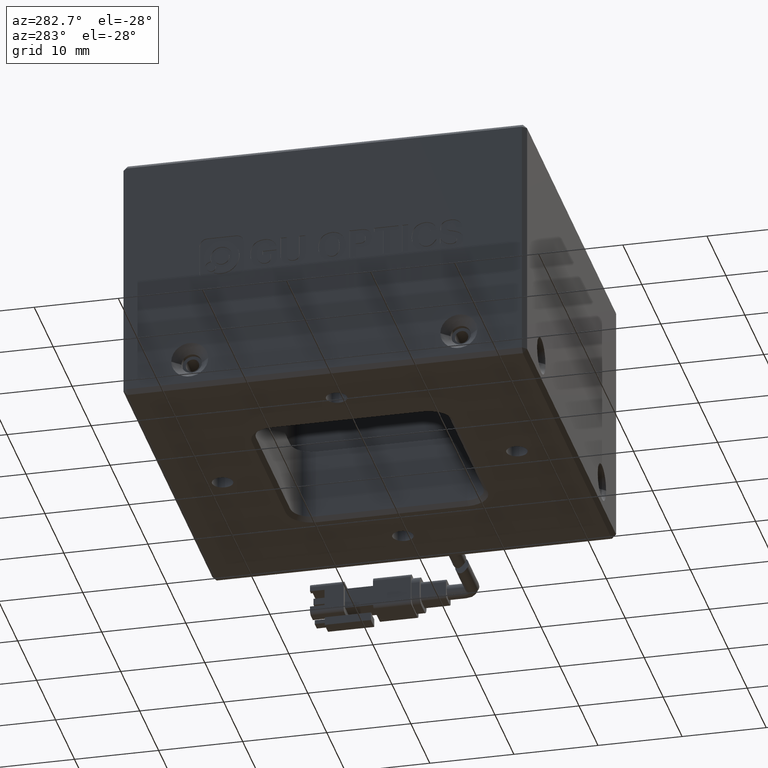
[diagram: clean part render]
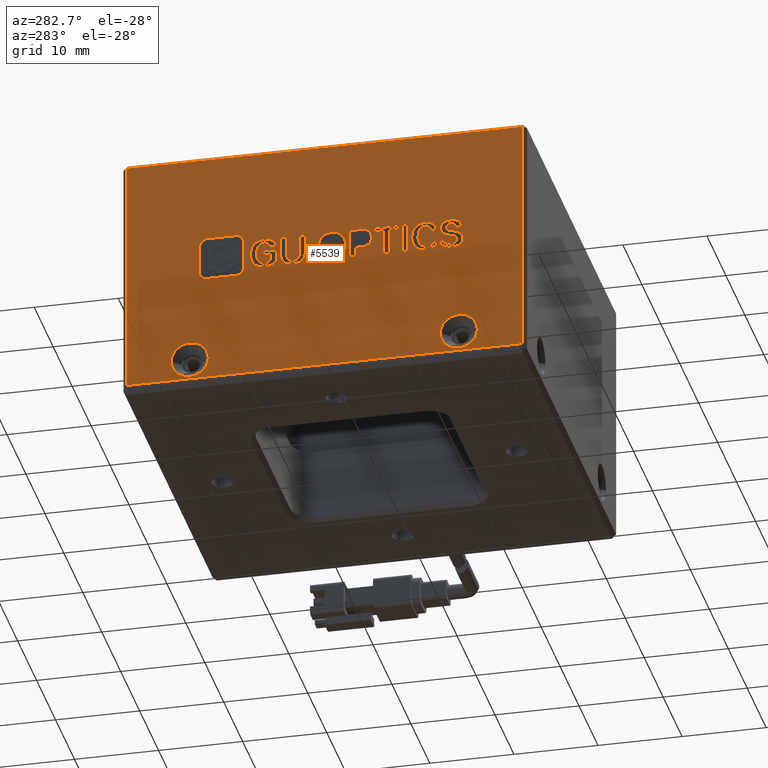
[diagram: same view with one face highlighted and labeled with its STEP entity id]
A machine part, auxiliary view. The second image highlights one B-rep face of the part: STEP entity #5539.
In plain terms, the highlighted planar face has unit normal (1, 0, -0).
Its self-contained STEP definition (entity closure, byte-faithful):
#96 = B_SPLINE_CURVE_WITH_KNOTS ( 'NONE', 3,
 ( #9302, #4756, #2426, #25190 ),
 .UNSPECIFIED., .F., .F.,
 ( 4, 4 ),
 ( 4.000000000000000000, 5.000000000000000000 ),
 .UNSPECIFIED. ) ;
#188 = CARTESIAN_POINT ( 'NONE',  ( -43.81427458548066100, 7.765608400826625500, 15.67569498061177000 ) ) ;
#195 = CARTESIAN_POINT ( 'NONE',  ( -43.81427458548066100, 6.611403425164183100, 18.23150893410011600 ) ) ;
#201 = ORIENTED_EDGE ( 'NONE', *, *, #7641, .F. ) ;
#243 = CARTESIAN_POINT ( 'NONE',  ( -43.81427458548066100, -12.35664687229421200, 15.93616009689074400 ) ) ;
#281 = B_SPLINE_CURVE_WITH_KNOTS ( 'NONE', 3,
 ( #10576, #28693, #12784, #26498 ),
 .UNSPECIFIED., .F., .F.,
 ( 4, 4 ),
 ( 12.00000000000000000, 13.00000000000000000 ),
 .UNSPECIFIED. ) ;
#282 = LINE ( 'NONE', #4694, #5620 ) ;
#295 = CARTESIAN_POINT ( 'NONE',  ( -43.81427458548066100, -6.342760988032107000, 14.73150893410006600 ) ) ;
#318 = CARTESIAN_POINT ( 'NONE',  ( -43.81427458548066100, 1.523910185575280800, 18.23685641922717700 ) ) ;
#381 = B_SPLINE_CURVE_WITH_KNOTS ( 'NONE', 3,
 ( #29330, #20722, #25258, #11612 ),
 .UNSPECIFIED., .F., .F.,
 ( 4, 4 ),
 ( 11.00000000000000000, 12.00000000000000000 ),
 .UNSPECIFIED. ) ;
#502 = CARTESIAN_POINT ( 'NONE',  ( -43.81427458548066100, -13.15630885174247000, 17.04848432620388000 ) ) ;
#510 = DIRECTION ( 'NONE',  ( -0.0000000000000000000, -1.000000000000000000, -0.0000000000000000000 ) ) ;
#526 = CARTESIAN_POINT ( 'NONE',  ( -43.81427458542472000, 19.60609332870144100, 3.500000000007282600 ) ) ;
#571 = VERTEX_POINT ( 'NONE', #4197 ) ;
#664 = CARTESIAN_POINT ( 'NONE',  ( -43.81427458548066100, -13.17675233470606400, 17.31988102712329100 ) ) ;
#753 = ORIENTED_EDGE ( 'NONE', *, *, #2946, .F. ) ;
#794 = CARTESIAN_POINT ( 'NONE',  ( -43.81427458548066100, 25.40609332874437200, 30.00000000000728000 ) ) ;
#811 = DIRECTION ( 'NONE',  ( -0.0000000000000000000, -1.000000000000000000, -0.0000000000000000000 ) ) ;
#900 = CARTESIAN_POINT ( 'NONE',  ( -43.81427458548066100, -5.613799387167006200, 17.74313684107681900 ) ) ;
#930 = CARTESIAN_POINT ( 'NONE',  ( -43.81427458548066100, 6.611403425164183100, 18.23150893410011600 ) ) ;
#934 = DIRECTION ( 'NONE',  ( -0.0000000000000000000, 1.000000000000000000, 4.184503184543701800E-015 ) ) ;
#973 = EDGE_CURVE ( 'NONE', #8889, #3201, #23410, .T. ) ;
#1037 = ORIENTED_EDGE ( 'NONE', *, *, #26365, .F. ) ;
#1038 = EDGE_CURVE ( 'NONE', #9262, #571, #25859, .T. ) ;
#1188 = DIRECTION ( 'NONE',  ( -0.0000000000000000000, 1.000000000000000000, 4.913173197129746500E-015 ) ) ;
#1190 = ORIENTED_EDGE ( 'NONE', *, *, #19334, .F. ) ;
#1195 = CARTESIAN_POINT ( 'NONE',  ( -43.81427458548066100, -4.535594952337369500, 18.23150893410007700 ) ) ;
#1239 = EDGE_CURVE ( 'NONE', #22095, #21745, #9022, .T. ) ;
#1311 = VERTEX_POINT ( 'NONE', #12139 ) ;
#1321 = CARTESIAN_POINT ( 'NONE',  ( -43.81427458548066100, -12.43264741312689600, 17.31988102712329100 ) ) ;
#1335 = VERTEX_POINT ( 'NONE', #21049 ) ;
#1351 = LINE ( 'NONE', #15647, #12705 ) ;
#1360 = CARTESIAN_POINT ( 'NONE',  ( -43.81427458548066100, -3.001671209773588300, 18.23150893410008400 ) ) ;
#1369 = ORIENTED_EDGE ( 'NONE', *, *, #8632, .F. ) ;
#1398 = CARTESIAN_POINT ( 'NONE',  ( -43.81427458548066100, -14.18908332443015000, 17.56941455876201300 ) ) ;
#1410 = CARTESIAN_POINT ( 'NONE',  ( -43.81427458548066100, -11.34914281604750400, 18.26941455876200500 ) ) ;
#1595 = CARTESIAN_POINT ( 'NONE',  ( -43.81427458548066100, -7.420965422861757900, 17.74313684107681200 ) ) ;
#1754 = DIRECTION ( 'NONE',  ( -0.0000000000000000000, -1.000000000000000000, -0.0000000000000000000 ) ) ;
#1773 = EDGE_CURVE ( 'NONE', #24745, #2037, #9628, .T. ) ;
#1798 = B_SPLINE_CURVE_WITH_KNOTS ( 'NONE', 3,
 ( #21861, #5947, #10489, #26406 ),
 .UNSPECIFIED., .F., .F.,
 ( 4, 4 ),
 ( 9.000000000000000000, 10.00000000000000000 ),
 .UNSPECIFIED. ) ;
#1841 = DIRECTION ( 'NONE',  ( 0.0000000000000000000, -1.000000000000000000, 0.0000000000000000000 ) ) ;
#1860 = VECTOR ( 'NONE', #28101, 1000.000000000000000 ) ;
#1940 = CARTESIAN_POINT ( 'NONE',  ( -43.81427458548066100, 5.138336902719583300, 15.13848567828614300 ) ) ;
#1970 = B_SPLINE_CURVE_WITH_KNOTS ( 'NONE', 3,
 ( #12821, #24168, #1410, #28730 ),
 .UNSPECIFIED., .F., .F.,
 ( 4, 4 ),
 ( 9.000000000000000000, 10.00000000000000000 ),
 .UNSPECIFIED. ) ;
#1977 = LINE ( 'NONE', #27571, #19441 ) ;
#2037 = VERTEX_POINT ( 'NONE', #8292 ) ;
#2050 = CARTESIAN_POINT ( 'NONE',  ( -43.81427458548066100, 8.570475896770387800, 18.28034614340243300 ) ) ;
#2053 = ORIENTED_EDGE ( 'NONE', *, *, #5331, .F. ) ;
#2054 = B_SPLINE_CURVE_WITH_KNOTS ( 'NONE', 3,
 ( #27556, #318, #18522, #4913 ),
 .UNSPECIFIED., .F., .F.,
 ( 4, 4 ),
 ( 2.000000000000000000, 3.000000000000000000 ),
 .UNSPECIFIED. ) ;
#2076 = ORIENTED_EDGE ( 'NONE', *, *, #13717, .F. ) ;
#2144 = CARTESIAN_POINT ( 'NONE',  ( -43.81427458548066100, 5.634469947608741000, 15.13848567828614500 ) ) ;
#2158 = EDGE_CURVE ( 'NONE', #23367, #22102, #16886, .T. ) ;
#2174 = B_SPLINE_CURVE_WITH_KNOTS ( 'NONE', 3,
 ( #7358, #21026, #2801, #23289 ),
 .UNSPECIFIED., .F., .F.,
 ( 4, 4 ),
 ( 3.000000000000000000, 4.000000000000000000 ),
 .UNSPECIFIED. ) ;
#2178 = CARTESIAN_POINT ( 'NONE',  ( -43.81427458548066100, 7.765608400826629100, 14.66639265503034500 ) ) ;
#2221 = CARTESIAN_POINT ( 'NONE',  ( -43.81427458548066100, 8.570475896770387800, 17.79197405037918900 ) ) ;
#2235 = ORIENTED_EDGE ( 'NONE', *, *, #17986, .F. ) ;
#2242 = DIRECTION ( 'NONE',  ( -0.0000000000000000000, 7.104105663523450600E-015, -1.000000000000000000 ) ) ;
#2329 = LINE ( 'NONE', #13520, #13718 ) ;
#2391 = VECTOR ( 'NONE', #7377, 1000.000000000000000 ) ;
#2426 = CARTESIAN_POINT ( 'NONE',  ( -43.81427458548066100, 4.621949666375520800, 15.11662250900545800 ) ) ;
#2444 = VERTEX_POINT ( 'NONE', #243 ) ;
#2464 = VERTEX_POINT ( 'NONE', #2526 ) ;
#2486 = LINE ( 'NONE', #7414, #25951 ) ;
#2506 = ORIENTED_EDGE ( 'NONE', *, *, #9951, .F. ) ;
#2526 = CARTESIAN_POINT ( 'NONE',  ( -43.81427458548066100, -3.001671209773574500, 15.95243916665820000 ) ) ;
#2622 = LINE ( 'NONE', #21488, #25372 ) ;
#2643 = CARTESIAN_POINT ( 'NONE',  ( -43.81427458548066100, -13.72352085823225600, 16.19662521316980600 ) ) ;
#2664 = EDGE_CURVE ( 'NONE', #2464, #13855, #11282, .T. ) ;
#2741 = ORIENTED_EDGE ( 'NONE', *, *, #13286, .F. ) ;
#2742 = CARTESIAN_POINT ( 'NONE',  ( -43.81427458548066100, 15.92955218656289100, 13.93986681899332900 ) ) ;
#2801 = CARTESIAN_POINT ( 'NONE',  ( -43.81427458548066100, 9.436105967078885800, 15.63755274156358700 ) ) ;
#2826 = ORIENTED_EDGE ( 'NONE', *, *, #8594, .F. ) ;
#2875 = AXIS2_PLACEMENT_3D ( 'NONE', #794, #16707, #3069 ) ;
#2938 = CARTESIAN_POINT ( 'NONE',  ( -43.81427458542472000, 15.20609332878730600, 3.500000000007282200 ) ) ;
#2946 = EDGE_CURVE ( 'NONE', #1335, #22835, #6159, .T. ) ;
#2947 = DIRECTION ( 'NONE',  ( -0.0000000000000000000, -1.000000000000000000, -0.0000000000000000000 ) ) ;
#2959 = ORIENTED_EDGE ( 'NONE', *, *, #15130, .F. ) ;
#2971 = PLANE ( 'NONE',  #2875 ) ;
#3030 = CARTESIAN_POINT ( 'NONE',  ( -43.81427458548066100, 16.25304360887762600, 18.64577097645472700 ) ) ;
#3055 = CARTESIAN_POINT ( 'NONE',  ( -43.81427458548066100, -9.729375374186954400, 16.44081125968142800 ) ) ;
#3069 = DIRECTION ( 'NONE',  ( -0.0000000000000000000, 0.0000000000000000000, -1.000000000000000000 ) ) ;
#3121 = FACE_OUTER_BOUND ( 'NONE', #9605, .T. ) ;
#3125 = EDGE_CURVE ( 'NONE', #16847, #9115, #10626, .T. ) ;
#3146 = CARTESIAN_POINT ( 'NONE',  ( -43.81427458548066100, -8.560027077810357100, 18.23150893410006300 ) ) ;
#3200 = CARTESIAN_POINT ( 'NONE',  ( -43.81427458548066100, 10.19544885512629200, 16.48964846898384800 ) ) ;
#3201 = VERTEX_POINT ( 'NONE', #15802 ) ;
#3225 = EDGE_LOOP ( 'NONE', ( #24504, #2506, #6418, #19910, #20013, #12459, #15512, #25328 ) ) ;
#3324 = VERTEX_POINT ( 'NONE', #20877 ) ;
#3333 = CARTESIAN_POINT ( 'NONE',  ( -43.81427458548066100, -4.206417018318708400, 16.31057870154190700 ) ) ;
#3378 = CARTESIAN_POINT ( 'NONE',  ( -43.81427458548156300, -12.39390667129856300, 3.500000000007282600 ) ) ;
#3380 = VECTOR ( 'NONE', #811, 1000.000000000000000 ) ;
#3426 = VECTOR ( 'NONE', #9286, 1000.000000000000000 ) ;
#3441 = CARTESIAN_POINT ( 'NONE',  ( -43.81427458548066100, -9.035811285490368000, 17.61290428293726200 ) ) ;
#3450 = VECTOR ( 'NONE', #20946, 1000.000000000000000 ) ;
#3464 = EDGE_CURVE ( 'NONE', #22409, #28379, #5069, .T. ) ;
#3542 = VERTEX_POINT ( 'NONE', #29246 ) ;
#3567 = VERTEX_POINT ( 'NONE', #4333 ) ;
#3570 = VERTEX_POINT ( 'NONE', #22512 ) ;
#3599 = VERTEX_POINT ( 'NONE', #24862 ) ;
#3649 = LINE ( 'NONE', #27342, #15740 ) ;
#3651 = ORIENTED_EDGE ( 'NONE', *, *, #6882, .F. ) ;
#3660 = EDGE_CURVE ( 'NONE', #18103, #12363, #1351, .T. ) ;
#3754 = VECTOR ( 'NONE', #510, 1000.000000000000000 ) ;
#3770 = ORIENTED_EDGE ( 'NONE', *, *, #10403, .F. ) ;
#3836 = FACE_BOUND ( 'NONE', #25338, .T. ) ;
#3874 = CARTESIAN_POINT ( 'NONE',  ( -43.81427458548066100, 0.4912303586417365900, 14.66639265503032000 ) ) ;
#3919 = CARTESIAN_POINT ( 'NONE',  ( -43.81427458548066100, 11.98486711186719200, 13.93986681899332300 ) ) ;
#4105 = LINE ( 'NONE', #900, #3380 ) ;
#4113 = CARTESIAN_POINT ( 'NONE',  ( -43.81427458548066100, -13.17675233470606400, 17.31988102712329100 ) ) ;
#4197 = CARTESIAN_POINT ( 'NONE',  ( -43.81427458548066100, -7.846208797659088900, 18.23150893410006300 ) ) ;
#4211 = EDGE_CURVE ( 'NONE', #11997, #13060, #2329, .T. ) ;
#4240 = ORIENTED_EDGE ( 'NONE', *, *, #17660, .F. ) ;
#4258 = VECTOR ( 'NONE', #27193, 1000.000000000000000 ) ;
#4301 = VERTEX_POINT ( 'NONE', #7040 ) ;
#4328 = VERTEX_POINT ( 'NONE', #25420 ) ;
#4333 = CARTESIAN_POINT ( 'NONE',  ( -43.81427458548066100, -7.846208797659074600, 14.73150893410006100 ) ) ;
#4347 = DIRECTION ( 'NONE',  ( -0.0000000000000000000, -1.000000000000000000, -4.861050951303667000E-015 ) ) ;
#4370 = CARTESIAN_POINT ( 'NONE',  ( -43.81427458548066100, 10.19544885512629200, 16.48964846898384800 ) ) ;
#4376 = CARTESIAN_POINT ( 'NONE',  ( -43.81427458548066100, 0.4912303586417365900, 14.66639265503032000 ) ) ;
#4457 = VECTOR ( 'NONE', #13496, 1000.000000000000000 ) ;
#4529 = CARTESIAN_POINT ( 'NONE',  ( -43.81427458548066100, 7.968244961129456300, 17.61290428293731800 ) ) ;
#4530 = CARTESIAN_POINT ( 'NONE',  ( -43.81427458548066100, -14.43203897613400400, 18.25848297412166600 ) ) ;
#4569 = B_SPLINE_CURVE_WITH_KNOTS ( 'NONE', 3,
 ( #26085, #12466, #3441, #19365 ),
 .UNSPECIFIED., .F., .F.,
 ( 4, 4 ),
 ( 8.000000000000000000, 9.000000000000000000 ),
 .UNSPECIFIED. ) ;
#4617 = ORIENTED_EDGE ( 'NONE', *, *, #27323, .F. ) ;
#4639 = CARTESIAN_POINT ( 'NONE',  ( -43.81427458548066100, -2.303090896090601800, 14.73150893410008100 ) ) ;
#4694 = CARTESIAN_POINT ( 'NONE',  ( -43.81427458548066100, 4.394137335385954300, 16.03383451549547800 ) ) ;
#4719 = VERTEX_POINT ( 'NONE', #17435 ) ;
#4756 = CARTESIAN_POINT ( 'NONE',  ( -43.81427458548066100, 4.373977789685398000, 15.41522986433264800 ) ) ;
#4775 = B_SPLINE_CURVE_WITH_KNOTS ( 'NONE', 3,
 ( #16253, #13956, #7192, #23130 ),
 .UNSPECIFIED., .F., .F.,
 ( 4, 4 ),
 ( 13.00000000000000000, 14.00000000000000000 ),
 .UNSPECIFIED. ) ;
#4788 = ORIENTED_EDGE ( 'NONE', *, *, #6567, .F. ) ;
#4796 = DIRECTION ( 'NONE',  ( -0.0000000000000000000, 1.000000000000000000, 9.518874376468122200E-015 ) ) ;
#4837 = EDGE_CURVE ( 'NONE', #25499, #21463, #12078, .T. ) ;
#4913 = CARTESIAN_POINT ( 'NONE',  ( -43.81427458548066100, 2.116203316997459900, 16.45709032944892100 ) ) ;
#4965 = ORIENTED_EDGE ( 'NONE', *, *, #14309, .F. ) ;
#4966 = CARTESIAN_POINT ( 'NONE',  ( -43.81427458548066100, -14.34610063108243900, 15.65941591084424400 ) ) ;
#5067 = ORIENTED_EDGE ( 'NONE', *, *, #27991, .F. ) ;
#5069 = B_SPLINE_CURVE_WITH_KNOTS ( 'NONE', 3,
 ( #10007, #21374, #5438, #25893 ),
 .UNSPECIFIED., .F., .F.,
 ( 4, 4 ),
 ( 2.000000000000000000, 3.000000000000000000 ),
 .UNSPECIFIED. ) ;
#5122 = VECTOR ( 'NONE', #13355, 1000.000000000000000 ) ;
#5146 = AXIS2_PLACEMENT_3D ( 'NONE', #29067, #15460, #1841 ) ;
#5213 = LINE ( 'NONE', #12329, #10513 ) ;
#5273 = VERTEX_POINT ( 'NONE', #1321 ) ;
#5309 = ORIENTED_EDGE ( 'NONE', *, *, #15795, .F. ) ;
#5324 = AXIS2_PLACEMENT_3D ( 'NONE', #23739, #10098, #25999 ) ;
#5331 = EDGE_CURVE ( 'NONE', #21745, #11359, #21306, .T. ) ;
#5438 = CARTESIAN_POINT ( 'NONE',  ( -43.81427458548066100, -10.02788808375954900, 17.75383181133097200 ) ) ;
#5539 = ADVANCED_FACE ( 'NONE', ( #15924, #9856, #3836, #27292, #21981, #28041, #21274, #15203, #9152, #3121, #26572, #20556 ), #2971, .F. ) ;
#5608 = CARTESIAN_POINT ( 'NONE',  ( -43.81427458548066100, -1.133742599714222800, 16.45709032944891300 ) ) ;
#5620 = VECTOR ( 'NONE', #11577, 1000.000000000000000 ) ;
#5644 = VERTEX_POINT ( 'NONE', #10197 ) ;
#5710 = CARTESIAN_POINT ( 'NONE',  ( -43.81427458548066100, 7.765608400826625500, 15.67569498061177000 ) ) ;
#5828 = LINE ( 'NONE', #11041, #5122 ) ;
#5885 = CARTESIAN_POINT ( 'NONE',  ( -43.81427458548066100, 8.125072976272736700, 15.12755409364582500 ) ) ;
#5947 = CARTESIAN_POINT ( 'NONE',  ( -43.81427458548066100, 6.641784712346549200, 15.14918064854036400 ) ) ;
#5958 = CARTESIAN_POINT ( 'NONE',  ( -43.81427458548066100, -13.72352085823225600, 16.19662521316980600 ) ) ;
#6056 = CIRCLE ( 'NONE', #11661, 2.199999999957066100 ) ;
#6105 = CARTESIAN_POINT ( 'NONE',  ( -43.81427458548066100, 7.082171407857707400, 16.75011358526292700 ) ) ;
#6127 = EDGE_CURVE ( 'NONE', #10730, #23857, #1970, .T. ) ;
#6144 = CARTESIAN_POINT ( 'NONE',  ( -43.81427458548066100, 8.737525653395465500, 16.26174149223963300 ) ) ;
#6148 = DIRECTION ( 'NONE',  ( -1.000000000000000000, 7.885106709139368200E-016, 0.0000000000000000000 ) ) ;
#6159 = B_SPLINE_CURVE_WITH_KNOTS ( 'NONE', 3,
 ( #10416, #12695, #1398, #17308 ),
 .UNSPECIFIED., .F., .F.,
 ( 4, 4 ),
 ( 8.000000000000000000, 9.000000000000000000 ),
 .UNSPECIFIED. ) ;
#6316 = EDGE_LOOP ( 'NONE', ( #7323, #7753, #19207, #18720, #18009, #4240, #28485 ) ) ;
#6398 = CARTESIAN_POINT ( 'NONE',  ( -43.81427458548066100, -11.99226071761573200, 17.12453218991402100 ) ) ;
#6400 = CARTESIAN_POINT ( 'NONE',  ( -43.81427458548066100, 11.35683482932607500, 19.15966228606631100 ) ) ;
#6418 = ORIENTED_EDGE ( 'NONE', *, *, #3660, .F. ) ;
#6433 = CARTESIAN_POINT ( 'NONE',  ( -43.81427458548066100, 2.065662484114879400, 15.32825041598221300 ) ) ;
#6562 = LINE ( 'NONE', #195, #29336 ) ;
#6567 = EDGE_CURVE ( 'NONE', #10672, #22095, #1798, .T. ) ;
#6599 = CARTESIAN_POINT ( 'NONE',  ( -43.81427458548066100, -13.72352085823225600, 16.19662521316980600 ) ) ;
#6660 = EDGE_CURVE ( 'NONE', #18955, #12338, #281, .T. ) ;
#6692 = CARTESIAN_POINT ( 'NONE',  ( -43.81427458548066100, 5.882441824298749300, 16.03383451549547800 ) ) ;
#6787 = CARTESIAN_POINT ( 'NONE',  ( -43.81427458548066100, -7.846208797659088900, 18.23150893410006300 ) ) ;
#6882 = EDGE_CURVE ( 'NONE', #14940, #26308, #96, .T. ) ;
#6936 = CARTESIAN_POINT ( 'NONE',  ( -43.81427458548066100, -10.57986212378126100, 14.66639265503028300 ) ) ;
#6969 = CARTESIAN_POINT ( 'NONE',  ( -43.81427458548066100, -5.613799387166999100, 14.73150893410007000 ) ) ;
#7040 = CARTESIAN_POINT ( 'NONE',  ( -43.81427458548066100, -2.303090896090605400, 15.95243916665820000 ) ) ;
#7045 = CARTESIAN_POINT ( 'NONE',  ( -43.81427458548066100, 7.082171407857714500, 15.44778800386755600 ) ) ;
#7077 = CARTESIAN_POINT ( 'NONE',  ( -43.81427458548066100, -6.342760988032114100, 17.74313684107681200 ) ) ;
#7114 = EDGE_CURVE ( 'NONE', #29187, #9262, #5213, .T. ) ;
#7192 = CARTESIAN_POINT ( 'NONE',  ( -43.81427458548066100, -13.16653059322414900, 14.63383451549539900 ) ) ;
#7204 = VERTEX_POINT ( 'NONE', #26374 ) ;
#7323 = ORIENTED_EDGE ( 'NONE', *, *, #28369, .F. ) ;
#7337 = CARTESIAN_POINT ( 'NONE',  ( -43.81427458548066100, -13.66275828386777700, 18.28034614340234800 ) ) ;
#7345 = ORIENTED_EDGE ( 'NONE', *, *, #3464, .F. ) ;
#7358 = CARTESIAN_POINT ( 'NONE',  ( -43.81427458548066100, 8.509713322405906100, 15.13848567828615500 ) ) ;
#7377 = DIRECTION ( 'NONE',  ( -0.0000000000000000000, 1.000000000000000000, -0.0000000000000000000 ) ) ;
#7414 = CARTESIAN_POINT ( 'NONE',  ( -43.81427458548066100, -3.001671209773574500, 15.95243916665820000 ) ) ;
#7509 = CARTESIAN_POINT ( 'NONE',  ( -43.81427458548066100, 15.92955218656287600, 19.15966228606632500 ) ) ;
#7603 = CARTESIAN_POINT ( 'NONE',  ( -43.81427458548066100, -6.342760988032114100, 17.74313684107681200 ) ) ;
#7641 = EDGE_CURVE ( 'NONE', #27831, #21411, #2174, .T. ) ;
#7753 = ORIENTED_EDGE ( 'NONE', *, *, #2664, .F. ) ;
#7758 = CARTESIAN_POINT ( 'NONE',  ( -43.81427458548066100, -14.10314497937892700, 15.12220660851862600 ) ) ;
#7783 = VERTEX_POINT ( 'NONE', #28256 ) ;
#7884 = CARTESIAN_POINT ( 'NONE',  ( -43.81427458548066100, -10.59500544449499800, 17.77569498061167200 ) ) ;
#8021 = ORIENTED_EDGE ( 'NONE', *, *, #25570, .F. ) ;
#8067 = EDGE_LOOP ( 'NONE', ( #8021, #10257 ) ) ;
#8090 = ORIENTED_EDGE ( 'NONE', *, *, #26710, .F. ) ;
#8171 = B_SPLINE_CURVE_WITH_KNOTS ( 'NONE', 3,
 ( #1940, #2144, #20358, #6692 ),
 .UNSPECIFIED., .F., .F.,
 ( 4, 4 ),
 ( 3.000000000000000000, 4.000000000000000000 ),
 .UNSPECIFIED. ) ;
#8281 = VERTEX_POINT ( 'NONE', #28536 ) ;
#8292 = CARTESIAN_POINT ( 'NONE',  ( -43.81427458548066100, -14.34610063108243900, 15.65941591084424400 ) ) ;
#8498 = CARTESIAN_POINT ( 'NONE',  ( -43.81427458548066100, 8.524856643119861100, 14.66639265503034800 ) ) ;
#8594 = EDGE_CURVE ( 'NONE', #27752, #8616, #13395, .T. ) ;
#8616 = VERTEX_POINT ( 'NONE', #18370 ) ;
#8628 = EDGE_CURVE ( 'NONE', #22487, #10360, #23755, .T. ) ;
#8632 = EDGE_CURVE ( 'NONE', #22092, #14940, #282, .T. ) ;
#8635 = ORIENTED_EDGE ( 'NONE', *, *, #25916, .F. ) ;
#8660 = CARTESIAN_POINT ( 'NONE',  ( -43.81427458548066100, -13.67790160458183200, 17.77569498061165700 ) ) ;
#8684 = DIRECTION ( 'NONE',  ( -0.0000000000000000000, -1.000000000000000000, -9.720812841099696300E-015 ) ) ;
#8710 = VECTOR ( 'NONE', #27835, 1000.000000000000000 ) ;
#8743 = CARTESIAN_POINT ( 'NONE',  ( -43.81427458548066100, 8.737525653395461900, 16.75011358526293400 ) ) ;
#8810 = DIRECTION ( 'NONE',  ( -1.000000000000000000, 7.885106709139368200E-016, 0.0000000000000000000 ) ) ;
#8815 = CARTESIAN_POINT ( 'NONE',  ( -43.81427458548066100, -12.36166309728049500, 16.73383451549540600 ) ) ;
#8834 = CARTESIAN_POINT ( 'NONE',  ( -43.81427458548066100, -1.133742599714222800, 16.45709032944891300 ) ) ;
#8889 = VERTEX_POINT ( 'NONE', #14984 ) ;
#9012 = CARTESIAN_POINT ( 'NONE',  ( -43.81427458548066100, 7.082171407857707400, 16.75011358526292700 ) ) ;
#9022 = B_SPLINE_CURVE_WITH_KNOTS ( 'NONE', 3,
 ( #16527, #23574, #25644, #14420 ),
 .UNSPECIFIED., .F., .F.,
 ( 4, 4 ),
 ( 8.000000000000000000, 9.000000000000000000 ),
 .UNSPECIFIED. ) ;
#9062 = LINE ( 'NONE', #24376, #21893 ) ;
#9115 = VERTEX_POINT ( 'NONE', #11658 ) ;
#9152 = FACE_BOUND ( 'NONE', #23506, .T. ) ;
#9201 = ORIENTED_EDGE ( 'NONE', *, *, #19511, .F. ) ;
#9262 = VERTEX_POINT ( 'NONE', #3146 ) ;
#9286 = DIRECTION ( 'NONE',  ( -0.0000000000000000000, 2.304034269251045700E-015, -1.000000000000000000 ) ) ;
#9302 = CARTESIAN_POINT ( 'NONE',  ( -43.81427458548066100, 4.394137335385954300, 16.03383451549547800 ) ) ;
#9317 = B_SPLINE_CURVE_WITH_KNOTS ( 'NONE', 3,
 ( #22475, #6433, #17970, #4376 ),
 .UNSPECIFIED., .F., .F.,
 ( 4, 4 ),
 ( 1.000000000000000000, 2.000000000000000000 ),
 .UNSPECIFIED. ) ;
#9328 = DIRECTION ( 'NONE',  ( -0.0000000000000000000, 5.920088052937219300E-015, -1.000000000000000000 ) ) ;
#9399 = CARTESIAN_POINT ( 'NONE',  ( -43.81427458548066100, -4.535594952337362400, 17.74313684107681900 ) ) ;
#9458 = CARTESIAN_POINT ( 'NONE',  ( -43.81427458548066100, 3.665175734520617700, 18.23150893410010200 ) ) ;
#9599 = EDGE_CURVE ( 'NONE', #10689, #9630, #14709, .T. ) ;
#9605 = EDGE_LOOP ( 'NONE', ( #16080, #13887, #22180, #27133 ) ) ;
#9628 = B_SPLINE_CURVE_WITH_KNOTS ( 'NONE', 3,
 ( #2643, #16279, #18581, #4966 ),
 .UNSPECIFIED., .F., .F.,
 ( 4, 4 ),
 ( 3.000000000000000000, 4.000000000000000000 ),
 .UNSPECIFIED. ) ;
#9630 = VERTEX_POINT ( 'NONE', #13051 ) ;
#9631 = VERTEX_POINT ( 'NONE', #28967 ) ;
#9647 = EDGE_CURVE ( 'NONE', #18805, #28737, #16294, .T. ) ;
#9698 = ORIENTED_EDGE ( 'NONE', *, *, #6660, .F. ) ;
#9790 = LINE ( 'NONE', #11821, #3754 ) ;
#9826 = DIRECTION ( 'NONE',  ( 0.0000000000000000000, 1.000000000000000000, 0.0000000000000000000 ) ) ;
#9832 = CARTESIAN_POINT ( 'NONE',  ( -43.81427458548066100, 4.394137335385947200, 18.23150893410010900 ) ) ;
#9856 = FACE_BOUND ( 'NONE', #15028, .T. ) ;
#9878 = ORIENTED_EDGE ( 'NONE', *, *, #16894, .F. ) ;
#9900 = AXIS2_PLACEMENT_3D ( 'NONE', #22459, #8810, #24710 ) ;
#9951 = EDGE_CURVE ( 'NONE', #12363, #17729, #29287, .T. ) ;
#10007 = CARTESIAN_POINT ( 'NONE',  ( -43.81427458548066100, -9.729375374186954400, 16.44081125968142800 ) ) ;
#10037 = LINE ( 'NONE', #24589, #16110 ) ;
#10062 = CARTESIAN_POINT ( 'NONE',  ( -43.81427458548066100, 7.765608400826622000, 16.26174149223962600 ) ) ;
#10098 = DIRECTION ( 'NONE',  ( -1.000000000000000000, 7.885106709546838500E-016, 0.0000000000000000000 ) ) ;
#10163 = LINE ( 'NONE', #24251, #26868 ) ;
#10197 = CARTESIAN_POINT ( 'NONE',  ( -43.81427458548066100, 11.03324827366780300, 14.89153324790617300 ) ) ;
#10257 = ORIENTED_EDGE ( 'NONE', *, *, #4837, .F. ) ;
#10301 = CARTESIAN_POINT ( 'NONE',  ( -43.81427458548066100, 24.90609332874438000, 30.00000000000728000 ) ) ;
#10336 = CARTESIAN_POINT ( 'NONE',  ( -43.81427458548066100, -11.91626017678304800, 15.91988102712329800 ) ) ;
#10338 = EDGE_CURVE ( 'NONE', #571, #3567, #28217, .T. ) ;
#10343 = CARTESIAN_POINT ( 'NONE',  ( -43.81427458548066100, 8.570475896770387800, 18.28034614340243300 ) ) ;
#10350 = CARTESIAN_POINT ( 'NONE',  ( -43.81427458548066100, 7.877101099582613800, 15.30662386108768800 ) ) ;
#10360 = VERTEX_POINT ( 'NONE', #13532 ) ;
#10403 = EDGE_CURVE ( 'NONE', #22466, #10672, #3649, .T. ) ;
#10416 = CARTESIAN_POINT ( 'NONE',  ( -43.81427458548066100, -13.67790160458183200, 17.77569498061165700 ) ) ;
#10420 = LINE ( 'NONE', #13442, #27903 ) ;
#10449 = EDGE_CURVE ( 'NONE', #9631, #12819, #18935, .T. ) ;
#10451 = VERTEX_POINT ( 'NONE', #7045 ) ;
#10472 = LINE ( 'NONE', #11169, #4457 ) ;
#10489 = CARTESIAN_POINT ( 'NONE',  ( -43.81427458548066100, 6.155778763184512700, 14.63383451549546900 ) ) ;
#10513 = VECTOR ( 'NONE', #14647, 1000.000000000000000 ) ;
#10576 = CARTESIAN_POINT ( 'NONE',  ( -43.81427458548066100, -13.75380749966015700, 14.66639265503027000 ) ) ;
#10626 = LINE ( 'NONE', #10991, #22055 ) ;
#10672 = VERTEX_POINT ( 'NONE', #28722 ) ;
#10689 = VERTEX_POINT ( 'NONE', #19616 ) ;
#10724 = CARTESIAN_POINT ( 'NONE',  ( -43.81427458548066100, 11.03324827366780500, 14.26340581615317200 ) ) ;
#10730 = VERTEX_POINT ( 'NONE', #11153 ) ;
#10789 = VECTOR ( 'NONE', #28509, 1000.000000000000000 ) ;
#10869 = EDGE_CURVE ( 'NONE', #4301, #2464, #2486, .T. ) ;
#10903 = VERTEX_POINT ( 'NONE', #664 ) ;
#10921 = CARTESIAN_POINT ( 'NONE',  ( -43.81427458548066100, 3.665175734520624400, 16.24546242247219000 ) ) ;
#10991 = CARTESIAN_POINT ( 'NONE',  ( -43.81427458548066100, -22.09390667125563500, 30.00000000000728000 ) ) ;
#11041 = CARTESIAN_POINT ( 'NONE',  ( -43.81427458548066100, -4.535594952337369500, 18.23150893410007700 ) ) ;
#11043 = LINE ( 'NONE', #12110, #28517 ) ;
#11063 = CARTESIAN_POINT ( 'NONE',  ( -43.81427458548066100, -12.43264741312689600, 17.31988102712329100 ) ) ;
#11106 = ORIENTED_EDGE ( 'NONE', *, *, #1239, .F. ) ;
#11117 = VECTOR ( 'NONE', #14348, 1000.000000000000000 ) ;
#11153 = CARTESIAN_POINT ( 'NONE',  ( -43.81427458548066100, -11.99226071761573200, 17.12453218991402100 ) ) ;
#11169 = CARTESIAN_POINT ( 'NONE',  ( -43.81427458548066100, 11.03324827366779300, 18.20800537048839700 ) ) ;
#11279 = LINE ( 'NONE', #26011, #16668 ) ;
#11282 = B_SPLINE_CURVE_WITH_KNOTS ( 'NONE', 3,
 ( #28287, #23693, #3333, #19248 ),
 .UNSPECIFIED., .F., .F.,
 ( 4, 4 ),
 ( 6.000000000000000000, 7.000000000000000000 ),
 .UNSPECIFIED. ) ;
#11301 = DIRECTION ( 'NONE',  ( -0.0000000000000000000, 3.437470482350367000E-015, -1.000000000000000000 ) ) ;
#11354 = EDGE_CURVE ( 'NONE', #7783, #18103, #25329, .T. ) ;
#11359 = VERTEX_POINT ( 'NONE', #9458 ) ;
#11363 = CARTESIAN_POINT ( 'NONE',  ( -43.81427458548066100, 15.30133915066854500, 19.15966228606632500 ) ) ;
#11381 = CARTESIAN_POINT ( 'NONE',  ( -43.81427458548066100, -11.18209305942197500, 15.11662250900540100 ) ) ;
#11398 = CARTESIAN_POINT ( 'NONE',  ( -43.81427458548066100, -13.75380749966016400, 16.81522986433259300 ) ) ;
#11424 = ORIENTED_EDGE ( 'NONE', *, *, #18445, .F. ) ;
#11562 = B_SPLINE_CURVE_WITH_KNOTS ( 'NONE', 3,
 ( #4113, #17629, #22299, #8660 ),
 .UNSPECIFIED., .F., .F.,
 ( 4, 4 ),
 ( 9.000000000000000000, 10.00000000000000000 ),
 .UNSPECIFIED. ) ;
#11577 = DIRECTION ( 'NONE',  ( -0.0000000000000000000, 3.157380294899610300E-015, -1.000000000000000000 ) ) ;
#11612 = CARTESIAN_POINT ( 'NONE',  ( -43.81427458548066100, -13.75380749966016400, 16.81522986433259300 ) ) ;
#11623 = VERTEX_POINT ( 'NONE', #18100 ) ;
#11658 = CARTESIAN_POINT ( 'NONE',  ( -43.81427458548066100, -22.09390667125563500, 1.000000000007269300 ) ) ;
#11661 = AXIS2_PLACEMENT_3D ( 'NONE', #19781, #6148, #22086 ) ;
#11702 = ORIENTED_EDGE ( 'NONE', *, *, #13561, .F. ) ;
#11761 = EDGE_CURVE ( 'NONE', #17005, #10903, #18592, .T. ) ;
#11810 = CARTESIAN_POINT ( 'NONE',  ( -43.81427458548066100, -13.75380749966016400, 16.81522986433259300 ) ) ;
#11821 = CARTESIAN_POINT ( 'NONE',  ( -43.81427458548066100, 25.40609332874437200, 29.50000000000728300 ) ) ;
#11893 = CARTESIAN_POINT ( 'NONE',  ( -43.81427458548066100, -12.46302870030914200, 17.94918064854026700 ) ) ;
#11997 = VERTEX_POINT ( 'NONE', #14041 ) ;
#12074 = CARTESIAN_POINT ( 'NONE',  ( -43.81427458548066100, -10.74691188040644400, 15.13848567828608800 ) ) ;
#12078 = CIRCLE ( 'NONE', #9900, 2.199999999957066100 ) ;
#12110 = CARTESIAN_POINT ( 'NONE',  ( -43.81427458548066100, 25.40609332874437200, 1.000000000007276400 ) ) ;
#12120 = CARTESIAN_POINT ( 'NONE',  ( -43.81427458548066100, 24.90609332874438700, 29.50000000000728000 ) ) ;
#12139 = CARTESIAN_POINT ( 'NONE',  ( -43.81427458548066100, -13.64752031739935700, 15.12220660851862800 ) ) ;
#12167 = CARTESIAN_POINT ( 'NONE',  ( -43.81427458548066100, 9.137593257505836100, 17.73755274156361800 ) ) ;
#12191 = EDGE_CURVE ( 'NONE', #28379, #8281, #19903, .T. ) ;
#12197 = CARTESIAN_POINT ( 'NONE',  ( -43.81427458548066100, -14.33587888960075300, 15.30127637596048900 ) ) ;
#12313 = CARTESIAN_POINT ( 'NONE',  ( -43.81427458548066100, -11.91626017678304800, 15.25243916665817600 ) ) ;
#12329 = CARTESIAN_POINT ( 'NONE',  ( -43.81427458548066100, -8.560027077810357100, 18.23150893410006300 ) ) ;
#12332 = EDGE_LOOP ( 'NONE', ( #18179, #18617, #18165, #13384 ) ) ;
#12338 = VERTEX_POINT ( 'NONE', #14938 ) ;
#12356 = EDGE_CURVE ( 'NONE', #23422, #5644, #20298, .T. ) ;
#12363 = VERTEX_POINT ( 'NONE', #1595 ) ;
#12422 = CARTESIAN_POINT ( 'NONE',  ( -43.81427458548066100, -11.17707683443548400, 17.55848297412167400 ) ) ;
#12444 = CARTESIAN_POINT ( 'NONE',  ( -43.81427458548066100, 4.394137335385954300, 16.03383451549547800 ) ) ;
#12459 = ORIENTED_EDGE ( 'NONE', *, *, #24009, .F. ) ;
#12466 = CARTESIAN_POINT ( 'NONE',  ( -43.81427458548066100, -9.557120101066258800, 18.21522986433261300 ) ) ;
#12549 = LINE ( 'NONE', #6398, #23967 ) ;
#12619 = EDGE_CURVE ( 'NONE', #22477, #5273, #20881, .T. ) ;
#12638 = VECTOR ( 'NONE', #27700, 1000.000000000000000 ) ;
#12652 = CARTESIAN_POINT ( 'NONE',  ( -43.81427458548066100, -4.186257472618592600, 17.09197405037914700 ) ) ;
#12695 = CARTESIAN_POINT ( 'NONE',  ( -43.81427458548066100, -13.98161983064961500, 17.76476339597132900 ) ) ;
#12705 = VECTOR ( 'NONE', #16044, 1000.000000000000000 ) ;
#12714 = B_SPLINE_CURVE_WITH_KNOTS ( 'NONE', 3,
 ( #12652, #28592, #14982, #1360 ),
 .UNSPECIFIED., .F., .F.,
 ( 4, 4 ),
 ( 5.000000000000000000, 6.000000000000000000 ),
 .UNSPECIFIED. ) ;
#12719 = CARTESIAN_POINT ( 'NONE',  ( -43.81427458548066100, -11.91626017678304800, 15.25243916665817600 ) ) ;
#12784 = CARTESIAN_POINT ( 'NONE',  ( -43.81427458548066100, -15.10023800263471600, 15.01383721965980400 ) ) ;
#12790 = ORIENTED_EDGE ( 'NONE', *, *, #26434, .F. ) ;
#12819 = VERTEX_POINT ( 'NONE', #14500 ) ;
#12821 = CARTESIAN_POINT ( 'NONE',  ( -43.81427458548066100, -11.99226071761573200, 17.12453218991402100 ) ) ;
#12856 = EDGE_CURVE ( 'NONE', #23514, #18169, #22374, .T. ) ;
#12920 = CARTESIAN_POINT ( 'NONE',  ( -43.81427458548066100, 3.665175734520617700, 18.23150893410010200 ) ) ;
#12951 = CARTESIAN_POINT ( 'NONE',  ( -43.81427458548066100, 10.19544885512629200, 16.48964846898384800 ) ) ;
#12967 = EDGE_CURVE ( 'NONE', #5273, #24745, #22569, .T. ) ;
#13004 = ORIENTED_EDGE ( 'NONE', *, *, #23496, .F. ) ;
#13021 = EDGE_CURVE ( 'NONE', #18580, #23202, #13795, .T. ) ;
#13051 = CARTESIAN_POINT ( 'NONE',  ( -43.81427458548066100, 7.097409374325891900, 17.25476474805358900 ) ) ;
#13060 = VERTEX_POINT ( 'NONE', #27182 ) ;
#13068 = VECTOR ( 'NONE', #2242, 1000.000000000000000 ) ;
#13131 = VERTEX_POINT ( 'NONE', #9399 ) ;
#13260 = CARTESIAN_POINT ( 'NONE',  ( -43.81427458548066100, 11.03324827366779600, 18.83626598892574600 ) ) ;
#13282 = CARTESIAN_POINT ( 'NONE',  ( -43.81427458548066100, 0.4912303586417227100, 18.28034614340240400 ) ) ;
#13286 = EDGE_CURVE ( 'NONE', #28613, #10451, #22765, .T. ) ;
#13355 = DIRECTION ( 'NONE',  ( -0.0000000000000000000, 1.000000000000000000, 2.404853718020526500E-015 ) ) ;
#13384 = ORIENTED_EDGE ( 'NONE', *, *, #10338, .F. ) ;
#13394 = CARTESIAN_POINT ( 'NONE',  ( -43.81427458548066100, 0.4912303586417227100, 18.28034614340240400 ) ) ;
#13395 = B_SPLINE_CURVE_WITH_KNOTS ( 'NONE', 3,
 ( #20582, #27326, #11381, #22858 ),
 .UNSPECIFIED., .F., .F.,
 ( 4, 4 ),
 ( 4.000000000000000000, 5.000000000000000000 ),
 .UNSPECIFIED. ) ;
#13426 = EDGE_LOOP ( 'NONE', ( #27773, #13004, #17535, #22280, #22704, #28042, #16964, #21531 ) ) ;
#13442 = CARTESIAN_POINT ( 'NONE',  ( -43.81427458548066100, -11.91626017678304800, 15.91988102712329800 ) ) ;
#13496 = DIRECTION ( 'NONE',  ( -0.0000000000000000000, -3.138377309125955500E-015, 1.000000000000000000 ) ) ;
#13520 = CARTESIAN_POINT ( 'NONE',  ( -43.81427458548066100, 16.25304360887763600, 14.89153324790619200 ) ) ;
#13532 = CARTESIAN_POINT ( 'NONE',  ( -43.81427458548066100, 7.765608400826625500, 15.67569498061177000 ) ) ;
#13558 = CARTESIAN_POINT ( 'NONE',  ( -43.81427458548066100, 8.205995096337778300, 17.79197405037918100 ) ) ;
#13559 = CARTESIAN_POINT ( 'NONE',  ( -43.81427458548066100, -14.99915633686944500, 17.18964846898374100 ) ) ;
#13561 = EDGE_CURVE ( 'NONE', #24099, #14883, #16963, .T. ) ;
#13604 = EDGE_CURVE ( 'NONE', #2444, #7204, #10163, .T. ) ;
#13609 = CARTESIAN_POINT ( 'NONE',  ( -43.81427458548066100, 7.082171407857714500, 15.44778800386755600 ) ) ;
#13717 = EDGE_CURVE ( 'NONE', #3599, #22119, #22959, .T. ) ;
#13718 = VECTOR ( 'NONE', #18095, 1000.000000000000000 ) ;
#13786 = VERTEX_POINT ( 'NONE', #11363 ) ;
#13795 = LINE ( 'NONE', #29477, #13068 ) ;
#13816 = CARTESIAN_POINT ( 'NONE',  ( -43.81427458548066100, 5.882441824298742200, 18.23150893410010900 ) ) ;
#13837 = ORIENTED_EDGE ( 'NONE', *, *, #26708, .F. ) ;
#13855 = VERTEX_POINT ( 'NONE', #25297 ) ;
#13887 = ORIENTED_EDGE ( 'NONE', *, *, #21984, .F. ) ;
#13924 = CARTESIAN_POINT ( 'NONE',  ( -43.81427458548066100, -14.30057602318647300, 17.18964846898374100 ) ) ;
#13950 = DIRECTION ( 'NONE',  ( -0.0000000000000000000, 1.000000000000000000, 9.518874376469572100E-015 ) ) ;
#13956 = CARTESIAN_POINT ( 'NONE',  ( -43.81427458548066100, -12.70077883551734900, 14.85104652198538500 ) ) ;
#13963 = VERTEX_POINT ( 'NONE', #25883 ) ;
#13995 = ORIENTED_EDGE ( 'NONE', *, *, #17691, .F. ) ;
#14041 = CARTESIAN_POINT ( 'NONE',  ( -43.81427458548066100, 16.25304360887762200, 18.01769111137507900 ) ) ;
#14143 = ORIENTED_EDGE ( 'NONE', *, *, #12967, .F. ) ;
#14163 = ORIENTED_EDGE ( 'NONE', *, *, #1773, .F. ) ;
#14193 = B_SPLINE_CURVE_WITH_KNOTS ( 'NONE', 3,
 ( #25781, #23535, #12167, #28135 ),
 .UNSPECIFIED., .F., .F.,
 ( 4, 4 ),
 ( 2.000000000000000000, 3.000000000000000000 ),
 .UNSPECIFIED. ) ;
#14258 = CARTESIAN_POINT ( 'NONE',  ( -43.81427458548066100, -9.729375374186954400, 16.44081125968142800 ) ) ;
#14309 = EDGE_CURVE ( 'NONE', #26606, #27752, #10420, .T. ) ;
#14348 = DIRECTION ( 'NONE',  ( -0.0000000000000000000, -1.420821132704811300E-014, 1.000000000000000000 ) ) ;
#14413 = CARTESIAN_POINT ( 'NONE',  ( -43.81427458548066100, 5.153480223433422900, 14.66639265503033900 ) ) ;
#14420 = CARTESIAN_POINT ( 'NONE',  ( -43.81427458548066100, 3.665175734520624400, 16.24546242247219000 ) ) ;
#14500 = CARTESIAN_POINT ( 'NONE',  ( -43.81427458548066100, 5.882441824298742200, 18.23150893410010900 ) ) ;
#14647 = DIRECTION ( 'NONE',  ( -0.0000000000000000000, -3.965082230804129000E-015, 1.000000000000000000 ) ) ;
#14709 = LINE ( 'NONE', #15371, #20791 ) ;
#14863 = CARTESIAN_POINT ( 'NONE',  ( -43.81427458548066100, 2.116203316997459900, 16.45709032944892100 ) ) ;
#14883 = VERTEX_POINT ( 'NONE', #2938 ) ;
#14922 = ORIENTED_EDGE ( 'NONE', *, *, #17027, .F. ) ;
#14938 = CARTESIAN_POINT ( 'NONE',  ( -43.81427458548066100, -15.09030019841595500, 15.70825312014656600 ) ) ;
#14940 = VERTEX_POINT ( 'NONE', #12444 ) ;
#14982 = CARTESIAN_POINT ( 'NONE',  ( -43.81427458548066100, -3.801427834976296000, 18.23150893410007700 ) ) ;
#14984 = CARTESIAN_POINT ( 'NONE',  ( -43.81427458548066100, -1.589367261693567500, 14.73150893410008400 ) ) ;
#15028 = EDGE_LOOP ( 'NONE', ( #1190, #24071, #17048, #29084, #7345, #8635, #2826, #4965, #8090, #14922 ) ) ;
#15112 = LINE ( 'NONE', #295, #20473 ) ;
#15130 = EDGE_CURVE ( 'NONE', #1311, #2444, #25024, .T. ) ;
#15146 = ORIENTED_EDGE ( 'NONE', *, *, #28588, .F. ) ;
#15193 = CARTESIAN_POINT ( 'NONE',  ( -43.81427458548066100, 11.03324827366780300, 18.20800537048839700 ) ) ;
#15203 = FACE_BOUND ( 'NONE', #24876, .T. ) ;
#15271 = CARTESIAN_POINT ( 'NONE',  ( -43.81427458548066100, 10.15512976372550800, 15.31755544572802400 ) ) ;
#15298 = DIRECTION ( 'NONE',  ( -0.0000000000000000000, -1.000000000000000000, -0.0000000000000000000 ) ) ;
#15371 = CARTESIAN_POINT ( 'NONE',  ( -43.81427458548066100, 7.097409374325891900, 17.25476474805358900 ) ) ;
#15377 = VECTOR ( 'NONE', #15298, 1000.000000000000000 ) ;
#15452 = CARTESIAN_POINT ( 'NONE',  ( -43.81427458548066100, -10.54948083659891900, 18.28034614340236200 ) ) ;
#15460 = DIRECTION ( 'NONE',  ( -1.000000000000000000, 7.885106709546838500E-016, 0.0000000000000000000 ) ) ;
#15466 = EDGE_CURVE ( 'NONE', #9630, #3599, #25407, .T. ) ;
#15512 = ORIENTED_EDGE ( 'NONE', *, *, #22124, .F. ) ;
#15565 = CARTESIAN_POINT ( 'NONE',  ( -43.81427458548066100, 11.98486711186717500, 19.15966228606631100 ) ) ;
#15647 = CARTESIAN_POINT ( 'NONE',  ( -43.81427458548066100, -7.420965422861757900, 17.74313684107681200 ) ) ;
#15696 = ORIENTED_EDGE ( 'NONE', *, *, #12856, .F. ) ;
#15699 = CARTESIAN_POINT ( 'NONE',  ( -43.81427458548066100, 9.613377465185744000, 18.22592483458687700 ) ) ;
#15709 = CARTESIAN_POINT ( 'NONE',  ( -43.81427458548066100, -13.75380749966015700, 14.66639265503027000 ) ) ;
#15740 = VECTOR ( 'NONE', #11301, 1000.000000000000000 ) ;
#15795 = EDGE_CURVE ( 'NONE', #12819, #22466, #6562, .T. ) ;
#15802 = CARTESIAN_POINT ( 'NONE',  ( -43.81427458548066100, -2.303090896090601800, 14.73150893410008100 ) ) ;
#15826 = CARTESIAN_POINT ( 'NONE',  ( -43.81427458548066100, -8.560027077810342900, 14.73150893410006100 ) ) ;
#15833 = EDGE_CURVE ( 'NONE', #25899, #7783, #15112, .T. ) ;
#15844 = CARTESIAN_POINT ( 'NONE',  ( -43.81427458548066100, -12.35664687229421200, 15.93616009689074400 ) ) ;
#15895 = B_SPLINE_CURVE_WITH_KNOTS ( 'NONE', 3,
 ( #2221, #13558, #4529, #20441 ),
 .UNSPECIFIED., .F., .F.,
 ( 4, 4 ),
 ( 1.000000000000000000, 2.000000000000000000 ),
 .UNSPECIFIED. ) ;
#15924 = FACE_BOUND ( 'NONE', #12332, .T. ) ;
#16023 = CARTESIAN_POINT ( 'NONE',  ( -43.81427458548066100, -9.035811285490360900, 15.32290293085505300 ) ) ;
#16044 = DIRECTION ( 'NONE',  ( -0.0000000000000000000, -1.000000000000000000, -0.0000000000000000000 ) ) ;
#16080 = ORIENTED_EDGE ( 'NONE', *, *, #3125, .F. ) ;
#16108 = B_SPLINE_CURVE_WITH_KNOTS ( 'NONE', 3,
 ( #28004, #7509, #3030, #18949 ),
 .UNSPECIFIED., .F., .F.,
 ( 4, 4 ),
 ( 1.000000000000000000, 2.000000000000000000 ),
 .UNSPECIFIED. ) ;
#16110 = VECTOR ( 'NONE', #20118, 1000.000000000000000 ) ;
#16180 = EDGE_CURVE ( 'NONE', #22119, #28613, #27740, .T. ) ;
#16226 = EDGE_CURVE ( 'NONE', #8281, #10730, #12549, .T. ) ;
#16253 = CARTESIAN_POINT ( 'NONE',  ( -43.81427458548066100, -12.35664687229421200, 15.31755544572794600 ) ) ;
#16274 = EDGE_CURVE ( 'NONE', #17729, #29467, #5828, .T. ) ;
#16279 = CARTESIAN_POINT ( 'NONE',  ( -43.81427458548066100, -14.13854249154789300, 16.12057734945968000 ) ) ;
#16294 = B_SPLINE_CURVE_WITH_KNOTS ( 'NONE', 3,
 ( #29184, #13260, #6400, #15565 ),
 .UNSPECIFIED., .F., .F.,
 ( 4, 4 ),
 ( 3.000000000000000000, 4.000000000000000000 ),
 .UNSPECIFIED. ) ;
#16426 = CARTESIAN_POINT ( 'NONE',  ( -43.81427458548066100, -13.17675233470606400, 17.31988102712329100 ) ) ;
#16527 = CARTESIAN_POINT ( 'NONE',  ( -43.81427458548066100, 5.153480223433422900, 14.66639265503033900 ) ) ;
#16668 = VECTOR ( 'NONE', #1188, 1000.000000000000000 ) ;
#16689 = CIRCLE ( 'NONE', #5146, 2.199999999957066100 ) ;
#16691 = CARTESIAN_POINT ( 'NONE',  ( -43.81427458548066100, -9.749629565641630100, 15.61592618666902000 ) ) ;
#16707 = DIRECTION ( 'NONE',  ( 1.000000000000000000, 0.0000000000000000000, -0.0000000000000000000 ) ) ;
#16709 = ORIENTED_EDGE ( 'NONE', *, *, #11761, .F. ) ;
#16847 = VERTEX_POINT ( 'NONE', #24363 ) ;
#16886 = LINE ( 'NONE', #10301, #10789 ) ;
#16894 = EDGE_CURVE ( 'NONE', #18283, #18580, #18569, .T. ) ;
#16963 = CIRCLE ( 'NONE', #5324, 2.199999999957066100 ) ;
#16964 = ORIENTED_EDGE ( 'NONE', *, *, #17459, .F. ) ;
#17005 = VERTEX_POINT ( 'NONE', #11398 ) ;
#17027 = EDGE_CURVE ( 'NONE', #13963, #3324, #29219, .T. ) ;
#17048 = ORIENTED_EDGE ( 'NONE', *, *, #16226, .F. ) ;
#17107 = VERTEX_POINT ( 'NONE', #27545 ) ;
#17236 = CARTESIAN_POINT ( 'NONE',  ( -43.81427458548066100, -10.57986212378126100, 14.66639265503028300 ) ) ;
#17308 = CARTESIAN_POINT ( 'NONE',  ( -43.81427458548066100, -14.30057602318647300, 17.18964846898374100 ) ) ;
#17311 = CARTESIAN_POINT ( 'NONE',  ( -43.81427458548066100, 8.509713322405906100, 15.13848567828615500 ) ) ;
#17335 = VECTOR ( 'NONE', #934, 1000.000000000000000 ) ;
#17394 = CARTESIAN_POINT ( 'NONE',  ( -43.81427458548066100, -1.082917829568156500, 15.32825041598220200 ) ) ;
#17435 = CARTESIAN_POINT ( 'NONE',  ( -43.81427458548066100, -14.99915633686944500, 17.18964846898374100 ) ) ;
#17459 = EDGE_CURVE ( 'NONE', #5644, #18805, #10472, .T. ) ;
#17485 = CARTESIAN_POINT ( 'NONE',  ( -43.81427458548066100, -0.5414494682917138100, 14.73150893410008800 ) ) ;
#17511 = B_SPLINE_CURVE_WITH_KNOTS ( 'NONE', 3,
 ( #8834, #24728, #27021, #13394 ),
 .UNSPECIFIED., .F., .F.,
 ( 4, 4 ),
 ( 3.000000000000000000, 4.000000000000000000 ),
 .UNSPECIFIED. ) ;
#17535 = ORIENTED_EDGE ( 'NONE', *, *, #4211, .F. ) ;
#17629 = CARTESIAN_POINT ( 'NONE',  ( -43.81427458548066100, -13.16653059322415600, 17.62359925319142200 ) ) ;
#17660 = EDGE_CURVE ( 'NONE', #17107, #8889, #26128, .T. ) ;
#17691 = EDGE_CURVE ( 'NONE', #21411, #4328, #14193, .T. ) ;
#17710 = VECTOR ( 'NONE', #9328, 1000.000000000000000 ) ;
#17729 = VERTEX_POINT ( 'NONE', #23718 ) ;
#17802 = VERTEX_POINT ( 'NONE', #14863 ) ;
#17906 = CARTESIAN_POINT ( 'NONE',  ( -43.81427458548066100, -7.846208797659074600, 14.73150893410006100 ) ) ;
#17962 = CARTESIAN_POINT ( 'NONE',  ( -43.81427458548066100, 10.15512976372550100, 17.62918335270477500 ) ) ;
#17970 = CARTESIAN_POINT ( 'NONE',  ( -43.81427458548066100, 1.523910185575291000, 14.73150893410009500 ) ) ;
#17986 = EDGE_CURVE ( 'NONE', #4328, #10689, #15895, .T. ) ;
#18009 = ORIENTED_EDGE ( 'NONE', *, *, #973, .F. ) ;
#18025 = CARTESIAN_POINT ( 'NONE',  ( -43.81427458548066100, -13.16160901399210700, 15.13290157877284500 ) ) ;
#18032 = LINE ( 'NONE', #19132, #17335 ) ;
#18082 = EDGE_CURVE ( 'NONE', #13786, #11997, #16108, .T. ) ;
#18087 = CARTESIAN_POINT ( 'NONE',  ( -43.81427458548066100, 8.524856643119861100, 14.66639265503034800 ) ) ;
#18095 = DIRECTION ( 'NONE',  ( -0.0000000000000000000, 4.439247284977225800E-015, -1.000000000000000000 ) ) ;
#18100 = CARTESIAN_POINT ( 'NONE',  ( -43.81427458548066100, 15.30133915066855700, 13.93986681899333600 ) ) ;
#18103 = VERTEX_POINT ( 'NONE', #7603 ) ;
#18165 = ORIENTED_EDGE ( 'NONE', *, *, #21387, .F. ) ;
#18169 = VERTEX_POINT ( 'NONE', #5608 ) ;
#18179 = ORIENTED_EDGE ( 'NONE', *, *, #1038, .F. ) ;
#18265 = B_SPLINE_CURVE_WITH_KNOTS ( 'NONE', 3,
 ( #20866, #27730, #2742, #18665 ),
 .UNSPECIFIED., .F., .F.,
 ( 4, 4 ),
 ( 7.000000000000000000, 8.000000000000000000 ),
 .UNSPECIFIED. ) ;
#18283 = VERTEX_POINT ( 'NONE', #6105 ) ;
#18290 = CARTESIAN_POINT ( 'NONE',  ( -43.81427458548066100, -8.985270452607451800, 16.47336939921633500 ) ) ;
#18291 = DIRECTION ( 'NONE',  ( -0.0000000000000000000, -3.157380294899610300E-015, 1.000000000000000000 ) ) ;
#18341 = EDGE_CURVE ( 'NONE', #29467, #13131, #10037, .T. ) ;
#18370 = CARTESIAN_POINT ( 'NONE',  ( -43.81427458548066100, -10.74691188040644400, 15.13848567828608800 ) ) ;
#18445 = EDGE_CURVE ( 'NONE', #12338, #17005, #381, .T. ) ;
#18489 = EDGE_CURVE ( 'NONE', #27412, #17802, #2054, .T. ) ;
#18522 = CARTESIAN_POINT ( 'NONE',  ( -43.81427458548066100, 2.065662484114872700, 17.62918335270474700 ) ) ;
#18558 = CARTESIAN_POINT ( 'NONE',  ( -43.81427458548066100, 11.98486711186717500, 19.15966228606631100 ) ) ;
#18569 = LINE ( 'NONE', #8743, #25292 ) ;
#18580 = VERTEX_POINT ( 'NONE', #27657 ) ;
#18581 = CARTESIAN_POINT ( 'NONE',  ( -43.81427458548066100, -14.34610063108243900, 15.94150758201781700 ) ) ;
#18592 = B_SPLINE_CURVE_WITH_KNOTS ( 'NONE', 3,
 ( #11810, #25430, #502, #16426 ),
 .UNSPECIFIED., .F., .F.,
 ( 4, 4 ),
 ( 10.00000000000000000, 11.00000000000000000 ),
 .UNSPECIFIED. ) ;
#18617 = ORIENTED_EDGE ( 'NONE', *, *, #7114, .F. ) ;
#18647 = CARTESIAN_POINT ( 'NONE',  ( -43.81427458548066100, -2.303090896090605400, 15.95243916665820000 ) ) ;
#18665 = CARTESIAN_POINT ( 'NONE',  ( -43.81427458548066100, 15.30133915066855700, 13.93986681899333600 ) ) ;
#18692 = CARTESIAN_POINT ( 'NONE',  ( -43.81427458548066100, -12.87303410863806600, 18.26941455876200100 ) ) ;
#18720 = ORIENTED_EDGE ( 'NONE', *, *, #28762, .F. ) ;
#18770 = CARTESIAN_POINT ( 'NONE',  ( -43.81427458548066100, -5.613799387166999100, 14.73150893410007000 ) ) ;
#18805 = VERTEX_POINT ( 'NONE', #15193 ) ;
#18935 = LINE ( 'NONE', #13816, #24954 ) ;
#18949 = CARTESIAN_POINT ( 'NONE',  ( -43.81427458548066100, 16.25304360887762200, 18.01769111137507900 ) ) ;
#18955 = VERTEX_POINT ( 'NONE', #15709 ) ;
#19132 = CARTESIAN_POINT ( 'NONE',  ( -43.81427458548066100, 15.30133915066854100, 19.15966228606632500 ) ) ;
#19207 = ORIENTED_EDGE ( 'NONE', *, *, #10869, .F. ) ;
#19248 = CARTESIAN_POINT ( 'NONE',  ( -43.81427458548066100, -4.186257472618592600, 17.09197405037914700 ) ) ;
#19334 = EDGE_CURVE ( 'NONE', #23857, #13963, #4569, .T. ) ;
#19365 = CARTESIAN_POINT ( 'NONE',  ( -43.81427458548066100, -8.985270452607451800, 16.47336939921633500 ) ) ;
#19419 = CARTESIAN_POINT ( 'NONE',  ( -43.81427458548066100, 7.320205480329175200, 17.93848567828617400 ) ) ;
#19441 = VECTOR ( 'NONE', #13950, 1000.000000000000000 ) ;
#19511 = EDGE_CURVE ( 'NONE', #14883, #24099, #16689, .T. ) ;
#19526 = CARTESIAN_POINT ( 'NONE',  ( -43.81427458548066100, -11.17707683443547700, 14.66639265503027900 ) ) ;
#19616 = CARTESIAN_POINT ( 'NONE',  ( -43.81427458548066100, 7.856657616619012100, 17.25476474805358900 ) ) ;
#19715 = ORIENTED_EDGE ( 'NONE', *, *, #13021, .F. ) ;
#19727 = EDGE_CURVE ( 'NONE', #7204, #18955, #4775, .T. ) ;
#19771 = CARTESIAN_POINT ( 'NONE',  ( -43.81427458548066100, -1.133742599714222800, 16.45709032944891300 ) ) ;
#19776 = DIRECTION ( 'NONE',  ( -0.0000000000000000000, -0.0000000000000000000, -1.000000000000000000 ) ) ;
#19781 = CARTESIAN_POINT ( 'NONE',  ( -43.81427458548156300, -14.59390667125562800, 3.500000000007282200 ) ) ;
#19814 = CARTESIAN_POINT ( 'NONE',  ( -43.81427458548066100, 11.35683482932609000, 13.93986681899332100 ) ) ;
#19903 = B_SPLINE_CURVE_WITH_KNOTS ( 'NONE', 3,
 ( #7884, #21510, #12422, #28360 ),
 .UNSPECIFIED., .F., .F.,
 ( 4, 4 ),
 ( 1.000000000000000000, 2.000000000000000000 ),
 .UNSPECIFIED. ) ;
#19906 = EDGE_CURVE ( 'NONE', #28737, #13786, #18032, .T. ) ;
#19910 = ORIENTED_EDGE ( 'NONE', *, *, #11354, .F. ) ;
#19941 = ORIENTED_EDGE ( 'NONE', *, *, #20728, .F. ) ;
#20013 = ORIENTED_EDGE ( 'NONE', *, *, #15833, .F. ) ;
#20118 = DIRECTION ( 'NONE',  ( -0.0000000000000000000, 1.420821132704811300E-014, -1.000000000000000000 ) ) ;
#20274 = CARTESIAN_POINT ( 'NONE',  ( -43.81427458548066100, -12.79182805130952800, 16.35941591084422700 ) ) ;
#20298 = B_SPLINE_CURVE_WITH_KNOTS ( 'NONE', 3,
 ( #3919, #19814, #10724, #26650 ),
 .UNSPECIFIED., .F., .F.,
 ( 4, 4 ),
 ( 5.000000000000000000, 6.000000000000000000 ),
 .UNSPECIFIED. ) ;
#20343 = CARTESIAN_POINT ( 'NONE',  ( -43.81427458548066100, -13.64752031739935700, 15.12220660851862800 ) ) ;
#20358 = CARTESIAN_POINT ( 'NONE',  ( -43.81427458548066100, 5.882441824298752800, 15.43685641922722400 ) ) ;
#20441 = CARTESIAN_POINT ( 'NONE',  ( -43.81427458548066100, 7.856657616619012100, 17.25476474805358900 ) ) ;
#20442 = CARTESIAN_POINT ( 'NONE',  ( -43.81427458548066100, -13.66275828386777700, 18.28034614340234800 ) ) ;
#20473 = VECTOR ( 'NONE', #20888, 1000.000000000000000 ) ;
#20525 = ORIENTED_EDGE ( 'NONE', *, *, #12619, .F. ) ;
#20556 = FACE_BOUND ( 'NONE', #28107, .T. ) ;
#20582 = CARTESIAN_POINT ( 'NONE',  ( -43.81427458548066100, -11.91626017678304800, 15.91988102712329800 ) ) ;
#20599 = CARTESIAN_POINT ( 'NONE',  ( -43.81427458548066100, -9.567341842548152900, 14.72081396384588300 ) ) ;
#20690 = EDGE_CURVE ( 'NONE', #17802, #23514, #9317, .T. ) ;
#20718 = ORIENTED_EDGE ( 'NONE', *, *, #21733, .F. ) ;
#20722 = CARTESIAN_POINT ( 'NONE',  ( -43.81427458548066100, -15.09030019841596200, 16.26174149223955100 ) ) ;
#20728 = EDGE_CURVE ( 'NONE', #10451, #18283, #27729, .T. ) ;
#20738 = VECTOR ( 'NONE', #27043, 1000.000000000000000 ) ;
#20791 = VECTOR ( 'NONE', #1754, 1000.000000000000000 ) ;
#20866 = CARTESIAN_POINT ( 'NONE',  ( -43.81427458548066100, 16.25304360887763600, 14.89153324790619200 ) ) ;
#20877 = CARTESIAN_POINT ( 'NONE',  ( -43.81427458548066100, -10.57986212378126100, 14.66639265503028300 ) ) ;
#20881 = B_SPLINE_CURVE_WITH_KNOTS ( 'NONE', 3,
 ( #7337, #18692, #11893, #27859 ),
 .UNSPECIFIED., .F., .F.,
 ( 4, 4 ),
 ( 5.000000000000000000, 6.000000000000000000 ),
 .UNSPECIFIED. ) ;
#20888 = DIRECTION ( 'NONE',  ( -0.0000000000000000000, -1.000000000000000000, -4.759437188236236000E-015 ) ) ;
#20946 = DIRECTION ( 'NONE',  ( -0.0000000000000000000, -2.841642265409674900E-015, 1.000000000000000000 ) ) ;
#20948 = CARTESIAN_POINT ( 'NONE',  ( -43.81427458548066100, -8.560027077810342900, 14.73150893410006100 ) ) ;
#21026 = CARTESIAN_POINT ( 'NONE',  ( -43.81427458548066100, 9.117149774542417300, 15.19267037271560000 ) ) ;
#21049 = CARTESIAN_POINT ( 'NONE',  ( -43.81427458548066100, -13.67790160458183200, 17.77569498061165700 ) ) ;
#21274 = FACE_BOUND ( 'NONE', #22060, .T. ) ;
#21306 = LINE ( 'NONE', #12920, #27330 ) ;
#21374 = CARTESIAN_POINT ( 'NONE',  ( -43.81427458548066100, -9.739407824159839000, 17.30894944248294500 ) ) ;
#21387 = EDGE_CURVE ( 'NONE', #3567, #29187, #25456, .T. ) ;
#21405 = DIRECTION ( 'NONE',  ( -0.0000000000000000000, -1.000000000000000000, -7.139387520457384600E-015 ) ) ;
#21411 = VERTEX_POINT ( 'NONE', #23225 ) ;
#21443 = LINE ( 'NONE', #26610, #15377 ) ;
#21463 = VERTEX_POINT ( 'NONE', #23416 ) ;
#21488 = CARTESIAN_POINT ( 'NONE',  ( -43.81427458548066100, 7.765608400826622000, 16.26174149223962600 ) ) ;
#21510 = CARTESIAN_POINT ( 'NONE',  ( -43.81427458548066100, -10.94935914920026600, 17.77569498061167200 ) ) ;
#21531 = ORIENTED_EDGE ( 'NONE', *, *, #12356, .F. ) ;
#21680 = EDGE_CURVE ( 'NONE', #11623, #23422, #9062, .T. ) ;
#21733 = EDGE_CURVE ( 'NONE', #10903, #1335, #11562, .T. ) ;
#21745 = VERTEX_POINT ( 'NONE', #10921 ) ;
#21809 = CARTESIAN_POINT ( 'NONE',  ( -43.81427458548066100, 8.509713322405906100, 15.13848567828615500 ) ) ;
#21861 = CARTESIAN_POINT ( 'NONE',  ( -43.81427458548066100, 6.611403425164190200, 16.21290428293733400 ) ) ;
#21893 = VECTOR ( 'NONE', #26666, 1000.000000000000000 ) ;
#21942 = ORIENTED_EDGE ( 'NONE', *, *, #13604, .F. ) ;
#21981 = FACE_BOUND ( 'NONE', #3225, .T. ) ;
#21984 = EDGE_CURVE ( 'NONE', #22102, #16847, #9790, .T. ) ;
#22014 = ORIENTED_EDGE ( 'NONE', *, *, #16180, .F. ) ;
#22055 = VECTOR ( 'NONE', #29217, 1000.000000000000000 ) ;
#22060 = EDGE_LOOP ( 'NONE', ( #27402, #28419, #5067, #15696 ) ) ;
#22086 = DIRECTION ( 'NONE',  ( 0.0000000000000000000, -1.000000000000000000, 0.0000000000000000000 ) ) ;
#22092 = VERTEX_POINT ( 'NONE', #9832 ) ;
#22095 = VERTEX_POINT ( 'NONE', #14413 ) ;
#22102 = VERTEX_POINT ( 'NONE', #12120 ) ;
#22105 = B_SPLINE_CURVE_WITH_KNOTS ( 'NONE', 3,
 ( #17236, #19526, #26359, #12719 ),
 .UNSPECIFIED., .F., .F.,
 ( 4, 4 ),
 ( 6.000000000000000000, 7.000000000000000000 ),
 .UNSPECIFIED. ) ;
#22119 = VERTEX_POINT ( 'NONE', #3200 ) ;
#22124 = EDGE_CURVE ( 'NONE', #13131, #3542, #4105, .T. ) ;
#22145 = CARTESIAN_POINT ( 'NONE',  ( -43.81427458548066100, 9.598139498717516800, 14.70988237920559300 ) ) ;
#22180 = ORIENTED_EDGE ( 'NONE', *, *, #2158, .F. ) ;
#22280 = ORIENTED_EDGE ( 'NONE', *, *, #18082, .F. ) ;
#22299 = CARTESIAN_POINT ( 'NONE',  ( -43.81427458548066100, -13.33358034984933800, 17.77569498061166400 ) ) ;
#22306 = LINE ( 'NONE', #18647, #3450 ) ;
#22374 = B_SPLINE_CURVE_WITH_KNOTS ( 'NONE', 3,
 ( #3874, #17485, #17394, #19771 ),
 .UNSPECIFIED., .F., .F.,
 ( 4, 4 ),
 ( 0.0000000000000000000, 1.000000000000000000 ),
 .UNSPECIFIED. ) ;
#22409 = VERTEX_POINT ( 'NONE', #14258 ) ;
#22440 = CARTESIAN_POINT ( 'NONE',  ( -43.81427458548066100, 5.138336902719583300, 15.13848567828614300 ) ) ;
#22459 = CARTESIAN_POINT ( 'NONE',  ( -43.81427458548156300, -14.59390667125562800, 3.500000000007282200 ) ) ;
#22466 = VERTEX_POINT ( 'NONE', #930 ) ;
#22475 = CARTESIAN_POINT ( 'NONE',  ( -43.81427458548066100, 2.116203316997459900, 16.45709032944892100 ) ) ;
#22477 = VERTEX_POINT ( 'NONE', #28281 ) ;
#22487 = VERTEX_POINT ( 'NONE', #10062 ) ;
#22512 = CARTESIAN_POINT ( 'NONE',  ( -43.81427458548066100, -3.001671209773588300, 18.23150893410008400 ) ) ;
#22569 = B_SPLINE_CURVE_WITH_KNOTS ( 'NONE', 3,
 ( #11063, #8815, #20274, #6599 ),
 .UNSPECIFIED., .F., .F.,
 ( 4, 4 ),
 ( 4.000000000000000000, 5.000000000000000000 ),
 .UNSPECIFIED. ) ;
#22693 = VECTOR ( 'NONE', #4347, 1000.000000000000000 ) ;
#22704 = ORIENTED_EDGE ( 'NONE', *, *, #19906, .F. ) ;
#22726 = CARTESIAN_POINT ( 'NONE',  ( -43.81427458548066100, 8.524856643119861100, 14.66639265503034800 ) ) ;
#22753 = CARTESIAN_POINT ( 'NONE',  ( -43.81427458548066100, 24.90609332874438000, 1.000000000007269300 ) ) ;
#22765 = B_SPLINE_CURVE_WITH_KNOTS ( 'NONE', 3,
 ( #18087, #2178, #27208, #13609 ),
 .UNSPECIFIED., .F., .F.,
 ( 4, 4 ),
 ( 10.00000000000000000, 11.00000000000000000 ),
 .UNSPECIFIED. ) ;
#22835 = VERTEX_POINT ( 'NONE', #13924 ) ;
#22858 = CARTESIAN_POINT ( 'NONE',  ( -43.81427458548066100, -10.74691188040644400, 15.13848567828608800 ) ) ;
#22940 = EDGE_CURVE ( 'NONE', #9115, #23367, #11043, .T. ) ;
#22959 = B_SPLINE_CURVE_WITH_KNOTS ( 'NONE', 3,
 ( #2050, #15699, #17962, #4370 ),
 .UNSPECIFIED., .F., .F.,
 ( 4, 4 ),
 ( 12.00000000000000000, 13.00000000000000000 ),
 .UNSPECIFIED. ) ;
#22971 = ORIENTED_EDGE ( 'NONE', *, *, #24667, .F. ) ;
#23021 = EDGE_CURVE ( 'NONE', #3570, #17107, #11279, .T. ) ;
#23130 = CARTESIAN_POINT ( 'NONE',  ( -43.81427458548066100, -13.75380749966015700, 14.66639265503027000 ) ) ;
#23202 = VERTEX_POINT ( 'NONE', #6144 ) ;
#23225 = CARTESIAN_POINT ( 'NONE',  ( -43.81427458548066100, 9.466487254261183500, 16.47336939921639900 ) ) ;
#23289 = CARTESIAN_POINT ( 'NONE',  ( -43.81427458548066100, 9.466487254261183500, 16.47336939921639900 ) ) ;
#23367 = VERTEX_POINT ( 'NONE', #22753 ) ;
#23410 = LINE ( 'NONE', #4639, #22693 ) ;
#23416 = CARTESIAN_POINT ( 'NONE',  ( -43.81427458548156300, -16.79390667121269200, 3.500000000007282200 ) ) ;
#23422 = VERTEX_POINT ( 'NONE', #27521 ) ;
#23496 = EDGE_CURVE ( 'NONE', #13060, #11623, #18265, .T. ) ;
#23506 = EDGE_LOOP ( 'NONE', ( #2076, #24943, #24217, #2235, #13995, #201, #13837, #24850, #22971, #19715, #9878, #19941, #2741, #22014 ) ) ;
#23514 = VERTEX_POINT ( 'NONE', #27834 ) ;
#23535 = CARTESIAN_POINT ( 'NONE',  ( -43.81427458548066100, 9.436105967078878700, 17.29801785784268400 ) ) ;
#23574 = CARTESIAN_POINT ( 'NONE',  ( -43.81427458548066100, 4.110862592281435500, 14.61220796060093000 ) ) ;
#23656 = CARTESIAN_POINT ( 'NONE',  ( -43.81427458548066100, -13.64752031739935700, 15.12220660851862800 ) ) ;
#23693 = CARTESIAN_POINT ( 'NONE',  ( -43.81427458548066100, -3.811554930703845700, 15.93057599737752700 ) ) ;
#23718 = CARTESIAN_POINT ( 'NONE',  ( -43.81427458548066100, -7.420965422861765000, 18.23150893410007000 ) ) ;
#23739 = CARTESIAN_POINT ( 'NONE',  ( -43.81427458542472000, 17.40609332874437200, 3.500000000007282200 ) ) ;
#23755 = LINE ( 'NONE', #188, #17710 ) ;
#23857 = VERTEX_POINT ( 'NONE', #15452 ) ;
#23967 = VECTOR ( 'NONE', #8684, 1000.000000000000000 ) ;
#23974 = CARTESIAN_POINT ( 'NONE',  ( -43.81427458548066100, 7.811133008722922700, 18.28034614340242600 ) ) ;
#24009 = EDGE_CURVE ( 'NONE', #3542, #25899, #27616, .T. ) ;
#24017 = CARTESIAN_POINT ( 'NONE',  ( -43.81427458548066100, -10.59500544449499800, 17.77569498061167200 ) ) ;
#24071 = ORIENTED_EDGE ( 'NONE', *, *, #6127, .F. ) ;
#24099 = VERTEX_POINT ( 'NONE', #526 ) ;
#24168 = CARTESIAN_POINT ( 'NONE',  ( -43.81427458548066100, -11.83013254022259300, 17.88406436947050800 ) ) ;
#24179 = B_SPLINE_CURVE_WITH_KNOTS ( 'NONE', 3,
 ( #5710, #10350, #5885, #21809 ),
 .UNSPECIFIED., .F., .F.,
 ( 4, 4 ),
 ( 4.000000000000000000, 5.000000000000000000 ),
 .UNSPECIFIED. ) ;
#24217 = ORIENTED_EDGE ( 'NONE', *, *, #9599, .F. ) ;
#24251 = CARTESIAN_POINT ( 'NONE',  ( -43.81427458548066100, -12.35664687229421200, 15.31755544572794600 ) ) ;
#24363 = CARTESIAN_POINT ( 'NONE',  ( -43.81427458548066100, -22.09390667125563500, 29.50000000000728300 ) ) ;
#24376 = CARTESIAN_POINT ( 'NONE',  ( -43.81427458548066100, 11.98486711186719200, 13.93986681899332300 ) ) ;
#24504 = ORIENTED_EDGE ( 'NONE', *, *, #16274, .F. ) ;
#24589 = CARTESIAN_POINT ( 'NONE',  ( -43.81427458548066100, -4.535594952337362400, 17.74313684107681900 ) ) ;
#24631 = EDGE_CURVE ( 'NONE', #2037, #1311, #25301, .T. ) ;
#24665 = DIRECTION ( 'NONE',  ( -0.0000000000000000000, 1.000000000000000000, 4.191787904378784500E-015 ) ) ;
#24667 = EDGE_CURVE ( 'NONE', #23202, #22487, #2622, .T. ) ;
#24710 = DIRECTION ( 'NONE',  ( 0.0000000000000000000, -1.000000000000000000, 0.0000000000000000000 ) ) ;
#24728 = CARTESIAN_POINT ( 'NONE',  ( -43.81427458548066100, -1.062758283868047600, 17.60732018342405800 ) ) ;
#24745 = VERTEX_POINT ( 'NONE', #5958 ) ;
#24850 = ORIENTED_EDGE ( 'NONE', *, *, #8628, .F. ) ;
#24862 = CARTESIAN_POINT ( 'NONE',  ( -43.81427458548066100, 8.570475896770387800, 18.28034614340243300 ) ) ;
#24876 = EDGE_LOOP ( 'NONE', ( #11106, #4788, #3770, #5309, #29139, #15146, #3651, #1369, #12790, #2053 ) ) ;
#24882 = CARTESIAN_POINT ( 'NONE',  ( -43.81427458548066100, -14.87763118814046100, 17.89499595411085800 ) ) ;
#24943 = ORIENTED_EDGE ( 'NONE', *, *, #15466, .F. ) ;
#24954 = VECTOR ( 'NONE', #18291, 1000.000000000000000 ) ;
#25024 = B_SPLINE_CURVE_WITH_KNOTS ( 'NONE', 3,
 ( #20343, #18025, #29437, #15844 ),
 .UNSPECIFIED., .F., .F.,
 ( 4, 4 ),
 ( 1.000000000000000000, 2.000000000000000000 ),
 .UNSPECIFIED. ) ;
#25190 = CARTESIAN_POINT ( 'NONE',  ( -43.81427458548066100, 5.138336902719583300, 15.13848567828614300 ) ) ;
#25258 = CARTESIAN_POINT ( 'NONE',  ( -43.81427458548066100, -14.64461334065504300, 16.63057599737748000 ) ) ;
#25292 = VECTOR ( 'NONE', #24665, 1000.000000000000000 ) ;
#25297 = CARTESIAN_POINT ( 'NONE',  ( -43.81427458548066100, -4.186257472618592600, 17.09197405037914700 ) ) ;
#25301 = B_SPLINE_CURVE_WITH_KNOTS ( 'NONE', 3,
 ( #28174, #12197, #7758, #23656 ),
 .UNSPECIFIED., .F., .F.,
 ( 4, 4 ),
 ( 2.000000000000000000, 3.000000000000000000 ),
 .UNSPECIFIED. ) ;
#25328 = ORIENTED_EDGE ( 'NONE', *, *, #18341, .F. ) ;
#25329 = LINE ( 'NONE', #7077, #1860 ) ;
#25338 = EDGE_LOOP ( 'NONE', ( #9698, #25957, #21942, #2959, #26543, #14163, #14143, #20525, #1037, #4617, #753, #20718, #16709, #11424 ) ) ;
#25372 = VECTOR ( 'NONE', #21405, 1000.000000000000000 ) ;
#25407 = B_SPLINE_CURVE_WITH_KNOTS ( 'NONE', 3,
 ( #26034, #19419, #23974, #10343 ),
 .UNSPECIFIED., .F., .F.,
 ( 4, 4 ),
 ( 13.00000000000000000, 14.00000000000000000 ),
 .UNSPECIFIED. ) ;
#25420 = CARTESIAN_POINT ( 'NONE',  ( -43.81427458548066100, 8.570475896770387800, 17.79197405037918900 ) ) ;
#25430 = CARTESIAN_POINT ( 'NONE',  ( -43.81427458548066100, -13.34881831631796700, 16.88034614340235600 ) ) ;
#25456 = LINE ( 'NONE', #20948, #12638 ) ;
#25499 = VERTEX_POINT ( 'NONE', #3378 ) ;
#25570 = EDGE_CURVE ( 'NONE', #21463, #25499, #6056, .T. ) ;
#25644 = CARTESIAN_POINT ( 'NONE',  ( -43.81427458548066100, 3.614634901637706400, 15.13848567828613800 ) ) ;
#25661 = CARTESIAN_POINT ( 'NONE',  ( -43.81427458548066100, -7.420965422861765000, 18.23150893410007000 ) ) ;
#25686 = CARTESIAN_POINT ( 'NONE',  ( -43.81427458548066100, -10.08865065812414700, 15.18173878807517800 ) ) ;
#25781 = CARTESIAN_POINT ( 'NONE',  ( -43.81427458548066100, 9.466487254261183500, 16.47336939921639900 ) ) ;
#25859 = LINE ( 'NONE', #6787, #2391 ) ;
#25883 = CARTESIAN_POINT ( 'NONE',  ( -43.81427458548066100, -8.985270452607451800, 16.47336939921633500 ) ) ;
#25893 = CARTESIAN_POINT ( 'NONE',  ( -43.81427458548066100, -10.59500544449499800, 17.77569498061167200 ) ) ;
#25899 = VERTEX_POINT ( 'NONE', #18770 ) ;
#25916 = EDGE_CURVE ( 'NONE', #8616, #22409, #29289, .T. ) ;
#25951 = VECTOR ( 'NONE', #2947, 1000.000000000000000 ) ;
#25957 = ORIENTED_EDGE ( 'NONE', *, *, #19727, .F. ) ;
#25999 = DIRECTION ( 'NONE',  ( 0.0000000000000000000, -1.000000000000000000, 0.0000000000000000000 ) ) ;
#26011 = CARTESIAN_POINT ( 'NONE',  ( -43.81427458548066100, -1.589367261693577700, 18.23150893410008800 ) ) ;
#26034 = CARTESIAN_POINT ( 'NONE',  ( -43.81427458548066100, 7.097409374325891900, 17.25476474805358900 ) ) ;
#26085 = CARTESIAN_POINT ( 'NONE',  ( -43.81427458548066100, -10.54948083659891900, 18.28034614340236200 ) ) ;
#26128 = LINE ( 'NONE', #27926, #8710 ) ;
#26308 = VERTEX_POINT ( 'NONE', #22440 ) ;
#26359 = CARTESIAN_POINT ( 'NONE',  ( -43.81427458548066100, -11.62247975493313800, 14.86174149223959000 ) ) ;
#26365 = EDGE_CURVE ( 'NONE', #4719, #22477, #26445, .T. ) ;
#26374 = CARTESIAN_POINT ( 'NONE',  ( -43.81427458548066100, -12.35664687229421200, 15.31755544572794600 ) ) ;
#26406 = CARTESIAN_POINT ( 'NONE',  ( -43.81427458548066100, 5.153480223433422900, 14.66639265503033900 ) ) ;
#26434 = EDGE_CURVE ( 'NONE', #11359, #22092, #1977, .T. ) ;
#26445 = B_SPLINE_CURVE_WITH_KNOTS ( 'NONE', 3,
 ( #13559, #24882, #4530, #20442 ),
 .UNSPECIFIED., .F., .F.,
 ( 4, 4 ),
 ( 6.000000000000000000, 7.000000000000000000 ),
 .UNSPECIFIED. ) ;
#26498 = CARTESIAN_POINT ( 'NONE',  ( -43.81427458548066100, -15.09030019841595500, 15.70825312014656600 ) ) ;
#26543 = ORIENTED_EDGE ( 'NONE', *, *, #24631, .F. ) ;
#26551 = DIRECTION ( 'NONE',  ( -0.0000000000000000000, -3.493822457470844100E-015, 1.000000000000000000 ) ) ;
#26572 = FACE_BOUND ( 'NONE', #8067, .T. ) ;
#26606 = VERTEX_POINT ( 'NONE', #12313 ) ;
#26610 = CARTESIAN_POINT ( 'NONE',  ( -43.81427458548066100, -14.99915633686944500, 17.18964846898374100 ) ) ;
#26650 = CARTESIAN_POINT ( 'NONE',  ( -43.81427458548066100, 11.03324827366780300, 14.89153324790617300 ) ) ;
#26666 = DIRECTION ( 'NONE',  ( -0.0000000000000000000, -1.000000000000000000, -3.661440286475739200E-015 ) ) ;
#26708 = EDGE_CURVE ( 'NONE', #10360, #27831, #24179, .T. ) ;
#26710 = EDGE_CURVE ( 'NONE', #3324, #26606, #22105, .T. ) ;
#26868 = VECTOR ( 'NONE', #19776, 1000.000000000000000 ) ;
#27021 = CARTESIAN_POINT ( 'NONE',  ( -43.81427458548066100, -0.5211006310823634900, 18.21522986433263800 ) ) ;
#27043 = DIRECTION ( 'NONE',  ( -0.0000000000000000000, 3.965082230804131400E-015, -1.000000000000000000 ) ) ;
#27133 = ORIENTED_EDGE ( 'NONE', *, *, #22940, .F. ) ;
#27182 = CARTESIAN_POINT ( 'NONE',  ( -43.81427458548066100, 16.25304360887763600, 14.89153324790619200 ) ) ;
#27193 = DIRECTION ( 'NONE',  ( -0.0000000000000000000, -5.328079247642966200E-015, 1.000000000000000000 ) ) ;
#27208 = CARTESIAN_POINT ( 'NONE',  ( -43.81427458548066100, 7.284807968160441400, 14.92685777130941600 ) ) ;
#27292 = FACE_BOUND ( 'NONE', #13426, .T. ) ;
#27323 = EDGE_CURVE ( 'NONE', #22835, #4719, #21443, .T. ) ;
#27326 = CARTESIAN_POINT ( 'NONE',  ( -43.81427458548066100, -11.57193892205066500, 15.37708762528447300 ) ) ;
#27330 = VECTOR ( 'NONE', #26551, 1000.000000000000000 ) ;
#27342 = CARTESIAN_POINT ( 'NONE',  ( -43.81427458548066100, 6.611403425164190200, 16.21290428293733400 ) ) ;
#27402 = ORIENTED_EDGE ( 'NONE', *, *, #20690, .F. ) ;
#27412 = VERTEX_POINT ( 'NONE', #13282 ) ;
#27521 = CARTESIAN_POINT ( 'NONE',  ( -43.81427458548066100, 11.98486711186719200, 13.93986681899332300 ) ) ;
#27545 = CARTESIAN_POINT ( 'NONE',  ( -43.81427458548066100, -1.589367261693577700, 18.23150893410008800 ) ) ;
#27556 = CARTESIAN_POINT ( 'NONE',  ( -43.81427458548066100, 0.4912303586417227100, 18.28034614340240400 ) ) ;
#27571 = CARTESIAN_POINT ( 'NONE',  ( -43.81427458548066100, 4.394137335385947200, 18.23150893410010900 ) ) ;
#27616 = LINE ( 'NONE', #6969, #3426 ) ;
#27657 = CARTESIAN_POINT ( 'NONE',  ( -43.81427458548066100, 8.737525653395461900, 16.75011358526293400 ) ) ;
#27700 = DIRECTION ( 'NONE',  ( -0.0000000000000000000, -1.000000000000000000, -2.430203210275302300E-015 ) ) ;
#27729 = LINE ( 'NONE', #9012, #4258 ) ;
#27730 = CARTESIAN_POINT ( 'NONE',  ( -43.81427458548066100, 16.25304360887763300, 14.26340581615318500 ) ) ;
#27740 = B_SPLINE_CURVE_WITH_KNOTS ( 'NONE', 3,
 ( #12951, #15271, #22145, #8498 ),
 .UNSPECIFIED., .F., .F.,
 ( 4, 4 ),
 ( 11.00000000000000000, 12.00000000000000000 ),
 .UNSPECIFIED. ) ;
#27752 = VERTEX_POINT ( 'NONE', #10336 ) ;
#27773 = ORIENTED_EDGE ( 'NONE', *, *, #21680, .F. ) ;
#27831 = VERTEX_POINT ( 'NONE', #17311 ) ;
#27834 = CARTESIAN_POINT ( 'NONE',  ( -43.81427458548066100, 0.4912303586417365900, 14.66639265503032000 ) ) ;
#27835 = DIRECTION ( 'NONE',  ( -0.0000000000000000000, 2.973811673103093800E-015, -1.000000000000000000 ) ) ;
#27859 = CARTESIAN_POINT ( 'NONE',  ( -43.81427458548066100, -12.43264741312689600, 17.31988102712329100 ) ) ;
#27903 = VECTOR ( 'NONE', #29342, 1000.000000000000000 ) ;
#27926 = CARTESIAN_POINT ( 'NONE',  ( -43.81427458548066100, -1.589367261693567500, 14.73150893410008400 ) ) ;
#27991 = EDGE_CURVE ( 'NONE', #18169, #27412, #17511, .T. ) ;
#28004 = CARTESIAN_POINT ( 'NONE',  ( -43.81427458548066100, 15.30133915066854500, 19.15966228606632500 ) ) ;
#28041 = FACE_BOUND ( 'NONE', #6316, .T. ) ;
#28042 = ORIENTED_EDGE ( 'NONE', *, *, #9647, .F. ) ;
#28101 = DIRECTION ( 'NONE',  ( -0.0000000000000000000, -2.304034269251048500E-015, 1.000000000000000000 ) ) ;
#28107 = EDGE_LOOP ( 'NONE', ( #9201, #11702 ) ) ;
#28135 = CARTESIAN_POINT ( 'NONE',  ( -43.81427458548066100, 8.570475896770387800, 17.79197405037918900 ) ) ;
#28174 = CARTESIAN_POINT ( 'NONE',  ( -43.81427458548066100, -14.34610063108243900, 15.65941591084424400 ) ) ;
#28217 = LINE ( 'NONE', #17906, #20738 ) ;
#28256 = CARTESIAN_POINT ( 'NONE',  ( -43.81427458548066100, -6.342760988032107000, 14.73150893410006600 ) ) ;
#28281 = CARTESIAN_POINT ( 'NONE',  ( -43.81427458548066100, -13.66275828386777700, 18.28034614340234800 ) ) ;
#28287 = CARTESIAN_POINT ( 'NONE',  ( -43.81427458548066100, -3.001671209773574500, 15.95243916665820000 ) ) ;
#28360 = CARTESIAN_POINT ( 'NONE',  ( -43.81427458548066100, -11.27844243746435300, 17.12453218991402800 ) ) ;
#28369 = EDGE_CURVE ( 'NONE', #13855, #3570, #12714, .T. ) ;
#28379 = VERTEX_POINT ( 'NONE', #24017 ) ;
#28419 = ORIENTED_EDGE ( 'NONE', *, *, #18489, .F. ) ;
#28485 = ORIENTED_EDGE ( 'NONE', *, *, #23021, .F. ) ;
#28509 = DIRECTION ( 'NONE',  ( 0.0000000000000000000, -0.0000000000000000000, 1.000000000000000000 ) ) ;
#28517 = VECTOR ( 'NONE', #9826, 1000.000000000000000 ) ;
#28536 = CARTESIAN_POINT ( 'NONE',  ( -43.81427458548066100, -11.27844243746435300, 17.12453218991402800 ) ) ;
#28588 = EDGE_CURVE ( 'NONE', #26308, #9631, #8171, .T. ) ;
#28592 = CARTESIAN_POINT ( 'NONE',  ( -43.81427458548066100, -4.196195276836800000, 17.85150622993566200 ) ) ;
#28613 = VERTEX_POINT ( 'NONE', #22726 ) ;
#28693 = CARTESIAN_POINT ( 'NONE',  ( -43.81427458548066100, -14.65483508213716700, 14.66639265503026700 ) ) ;
#28722 = CARTESIAN_POINT ( 'NONE',  ( -43.81427458548066100, 6.611403425164190200, 16.21290428293733400 ) ) ;
#28730 = CARTESIAN_POINT ( 'NONE',  ( -43.81427458548066100, -10.54948083659891900, 18.28034614340236200 ) ) ;
#28737 = VERTEX_POINT ( 'NONE', #18558 ) ;
#28762 = EDGE_CURVE ( 'NONE', #3201, #4301, #22306, .T. ) ;
#28967 = CARTESIAN_POINT ( 'NONE',  ( -43.81427458548066100, 5.882441824298749300, 16.03383451549547800 ) ) ;
#29067 = CARTESIAN_POINT ( 'NONE',  ( -43.81427458542472000, 17.40609332874437200, 3.500000000007282200 ) ) ;
#29084 = ORIENTED_EDGE ( 'NONE', *, *, #12191, .F. ) ;
#29139 = ORIENTED_EDGE ( 'NONE', *, *, #10449, .F. ) ;
#29184 = CARTESIAN_POINT ( 'NONE',  ( -43.81427458548066100, 11.03324827366780300, 18.20800537048839700 ) ) ;
#29187 = VERTEX_POINT ( 'NONE', #15826 ) ;
#29217 = DIRECTION ( 'NONE',  ( -0.0000000000000000000, 0.0000000000000000000, -1.000000000000000000 ) ) ;
#29219 = B_SPLINE_CURVE_WITH_KNOTS ( 'NONE', 3,
 ( #18290, #16023, #20599, #6936 ),
 .UNSPECIFIED., .F., .F.,
 ( 4, 4 ),
 ( 7.000000000000000000, 8.000000000000000000 ),
 .UNSPECIFIED. ) ;
#29246 = CARTESIAN_POINT ( 'NONE',  ( -43.81427458548066100, -5.613799387167006200, 17.74313684107681900 ) ) ;
#29287 = LINE ( 'NONE', #25661, #11117 ) ;
#29289 = B_SPLINE_CURVE_WITH_KNOTS ( 'NONE', 3,
 ( #12074, #25686, #16691, #3055 ),
 .UNSPECIFIED., .F., .F.,
 ( 4, 4 ),
 ( 3.000000000000000000, 4.000000000000000000 ),
 .UNSPECIFIED. ) ;
#29330 = CARTESIAN_POINT ( 'NONE',  ( -43.81427458548066100, -15.09030019841595500, 15.70825312014656600 ) ) ;
#29336 = VECTOR ( 'NONE', #4796, 1000.000000000000000 ) ;
#29342 = DIRECTION ( 'NONE',  ( -0.0000000000000000000, -0.0000000000000000000, 1.000000000000000000 ) ) ;
#29437 = CARTESIAN_POINT ( 'NONE',  ( -43.81427458548066100, -12.73116012269959500, 15.40429827969225900 ) ) ;
#29467 = VERTEX_POINT ( 'NONE', #1195 ) ;
#29477 = CARTESIAN_POINT ( 'NONE',  ( -43.81427458548066100, 8.737525653395465500, 16.26174149223963300 ) ) ;